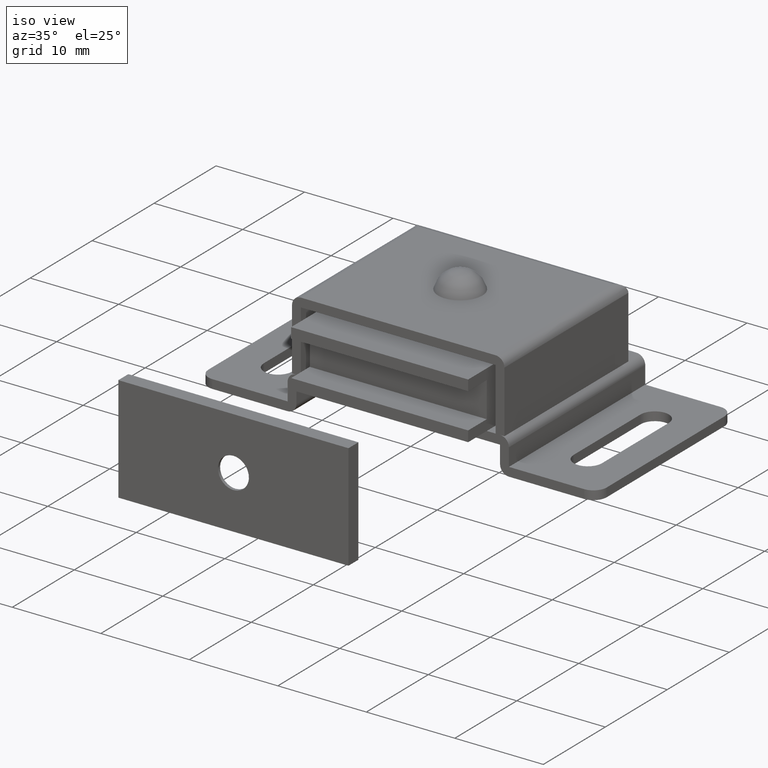
[diagram: clean part render]
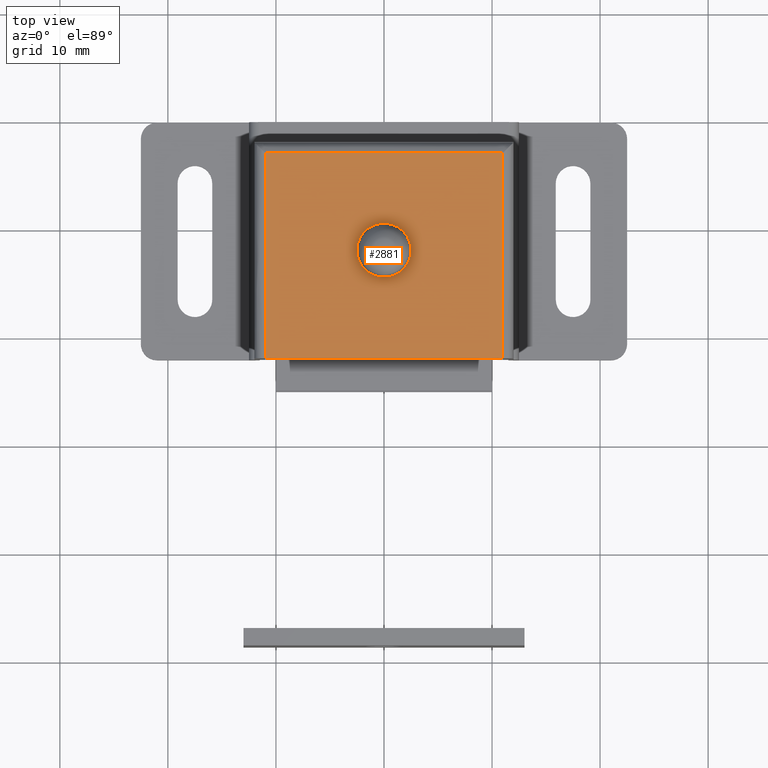
[diagram: tour spotlight — one face highlighted and labeled with its STEP entity id]
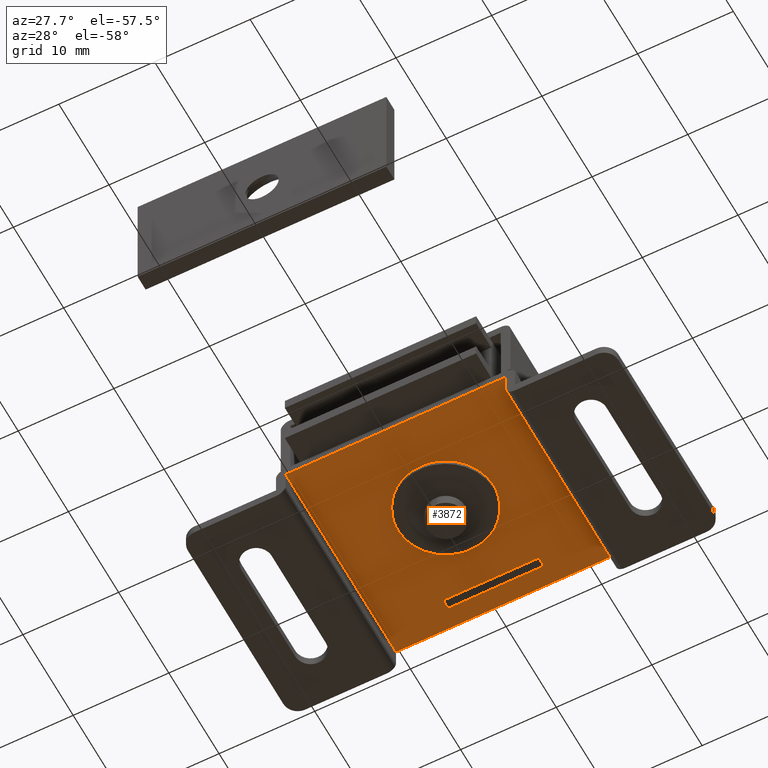
[diagram: tour spotlight — one face highlighted and labeled with its STEP entity id]
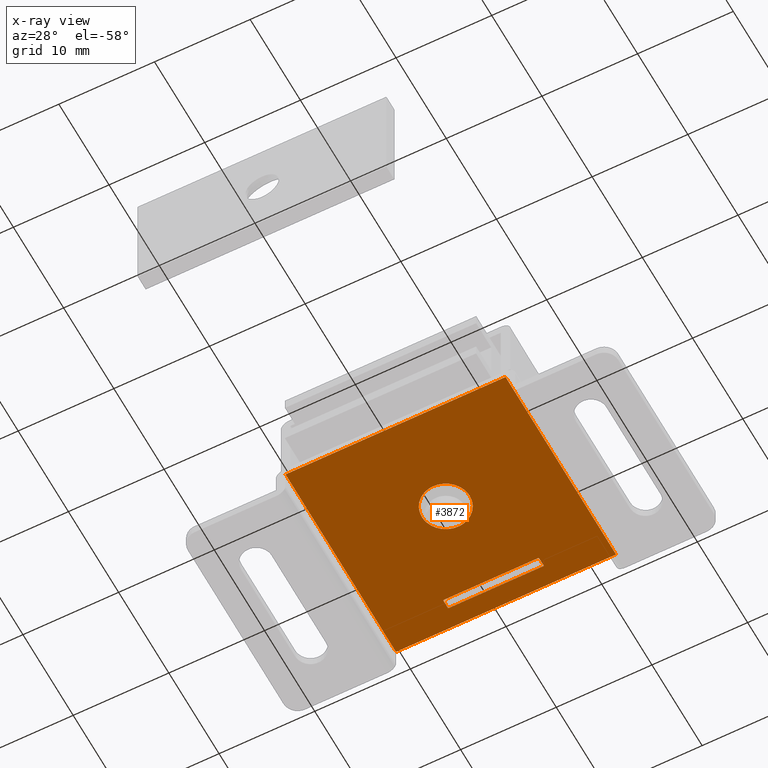
[diagram: x-ray of the same camera — body ghosted, this tour face saturated]
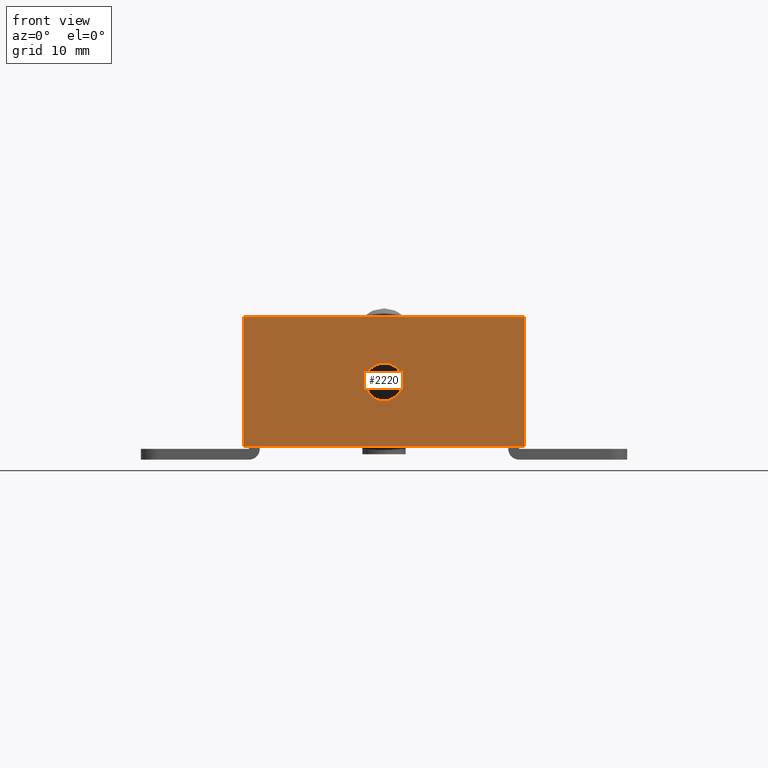
[diagram: tour spotlight — one face highlighted and labeled with its STEP entity id]
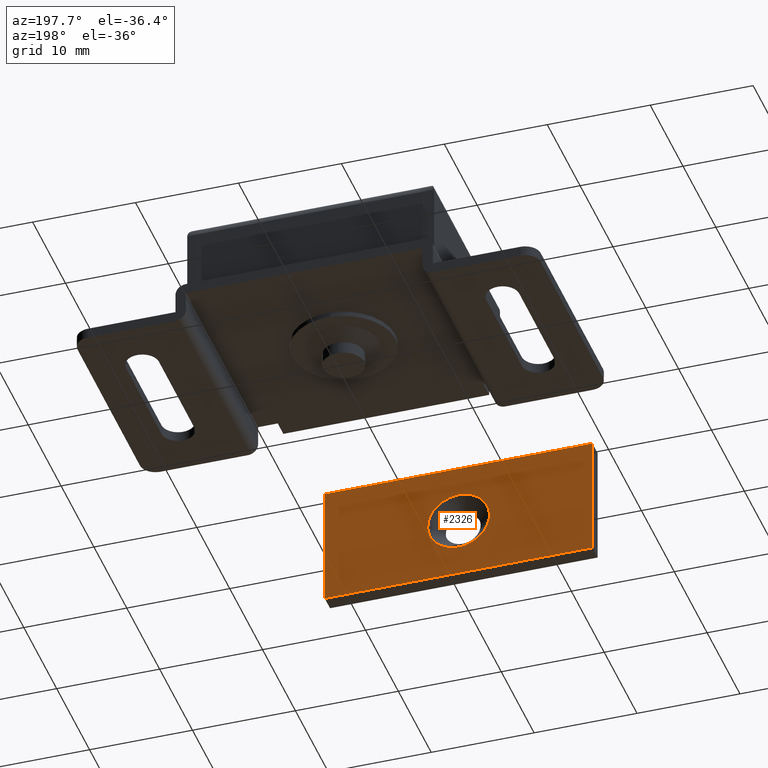
[diagram: tour spotlight — one face highlighted and labeled with its STEP entity id]
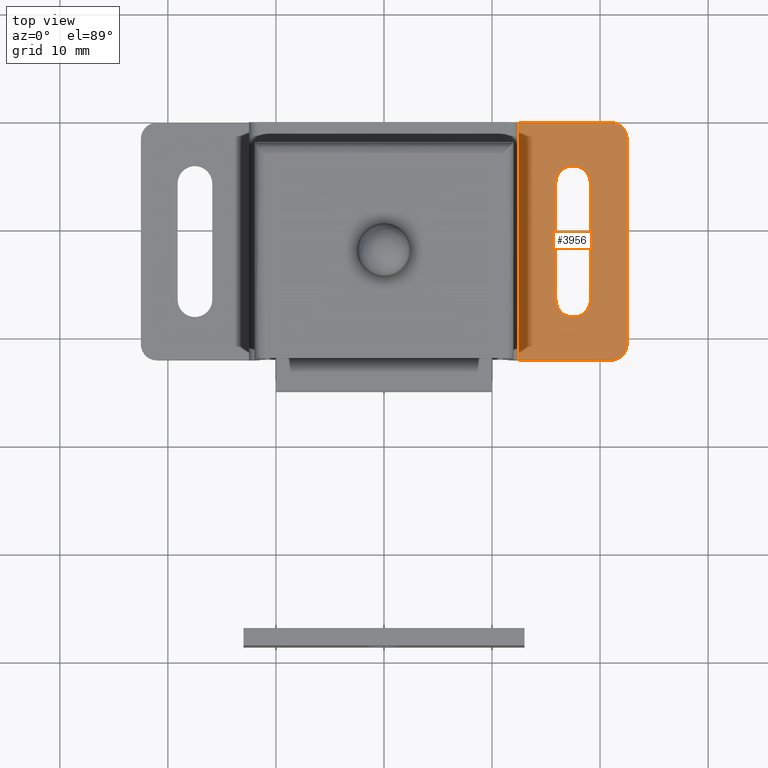
[diagram: tour spotlight — one face highlighted and labeled with its STEP entity id]
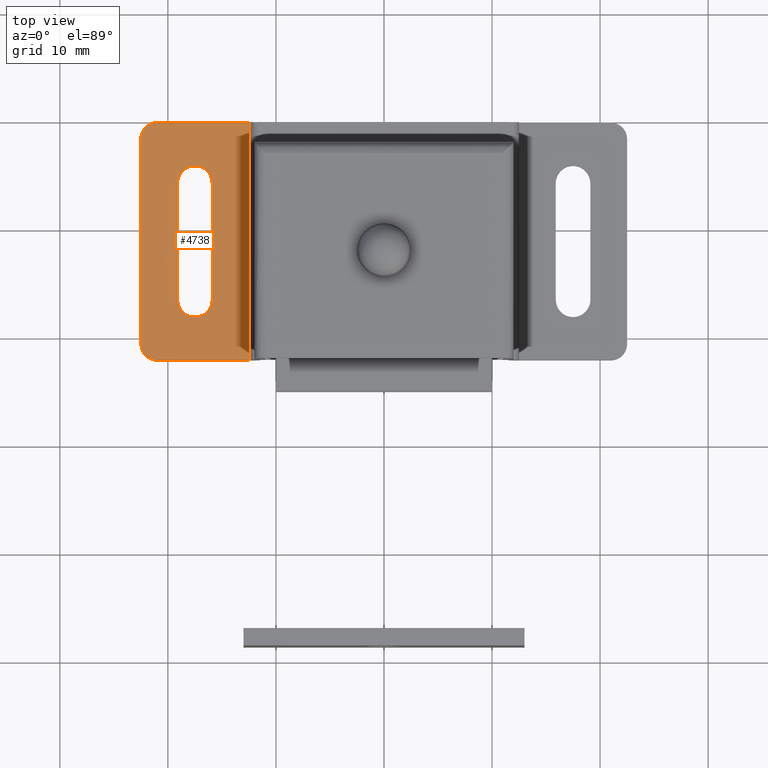
[diagram: tour spotlight — one face highlighted and labeled with its STEP entity id]
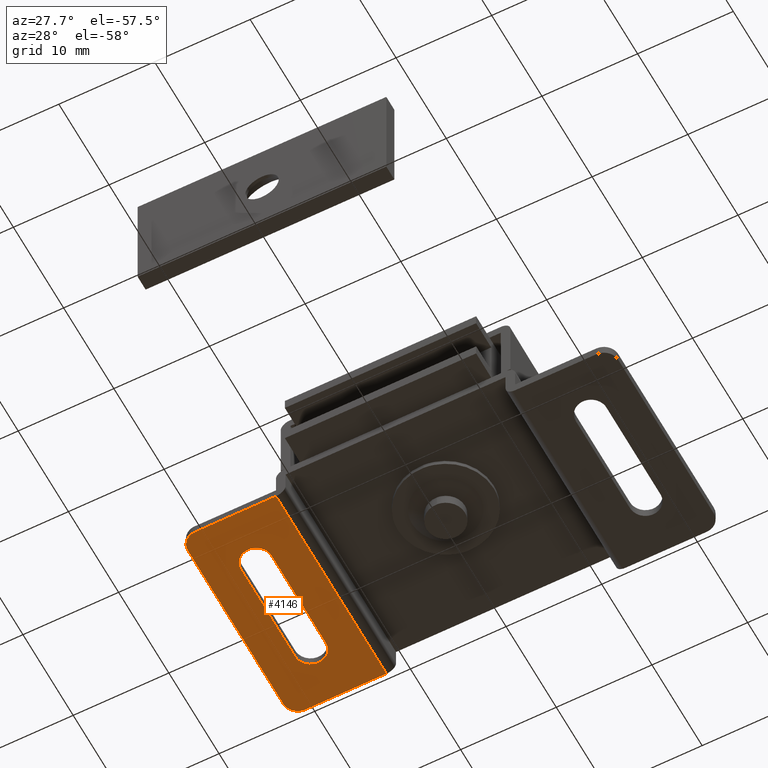
[diagram: tour spotlight — one face highlighted and labeled with its STEP entity id]
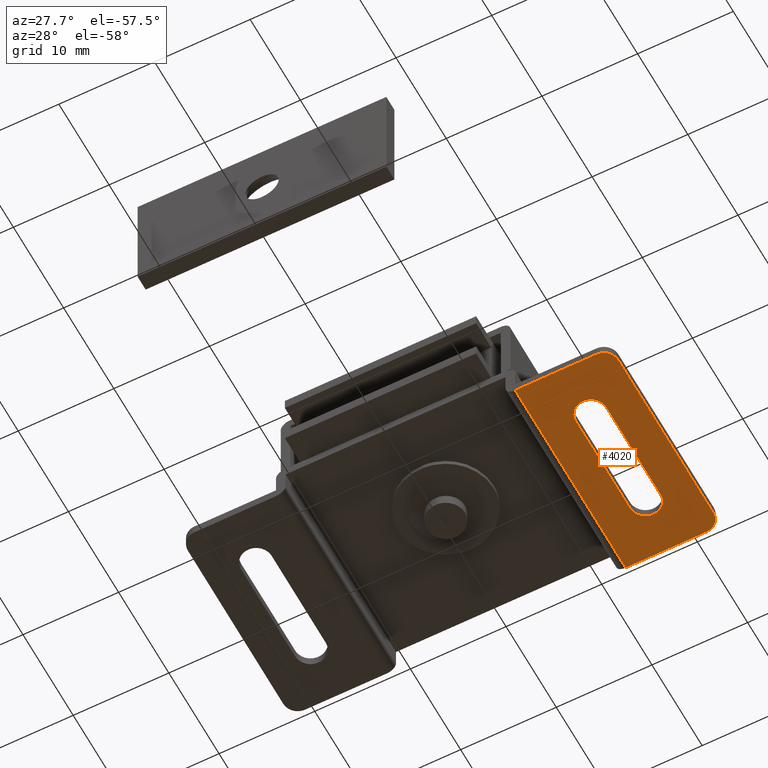
[diagram: tour spotlight — one face highlighted and labeled with its STEP entity id]
A machine part: a face-by-face anatomy tour. The part has 113 B-rep faces; the first image is the clean iso view, then the 8 largest visible faces are spotlighted one at a time (largest first), each with its STEP entity span.

Face 1 — top view, entity #2881. In plain terms, the highlighted face is a freeform B-spline surface patch.
Definition (entity closure, byte-faithful):
#2364=CARTESIAN_POINT('',(0.117688643632601,-13.495380000596500,12.0));
#2365=VERTEX_POINT('',#2364);
#2371=CARTESIAN_POINT('',(1.500000000000000,-12.000004000000020,12.0));
#2372=VERTEX_POINT('',#2371);
#2373=CARTESIAN_POINT('',(1.500000000000000,-12.000004000000020,12.0));
#2374=CARTESIAN_POINT('',(1.500000000000001,-13.386589737449350,12.0));
#2375=CARTESIAN_POINT('',(0.117688643632601,-13.495380000596503,12.000000000000004));
#2383=(BOUNDED_CURVE()B_SPLINE_CURVE(2,(#2373,#2374,#2375),.UNSPECIFIED.,.F.,.U.)B_SPLINE_CURVE_WITH_KNOTS((3,3),(0.0,0.236331300628086),.UNSPECIFIED.)CURVE()GEOMETRIC_REPRESENTATION_ITEM()RATIONAL_B_SPLINE_CURVE((1.0,0.723120658610681,0.969723356162046))REPRESENTATION_ITEM(''));
#2384=EDGE_CURVE('',#2372,#2365,#2383,.T.);
#2386=CARTESIAN_POINT('',(-0.117688643632601,-10.504627999403541,12.0));
#2387=VERTEX_POINT('',#2386);
#2388=CARTESIAN_POINT('',(-0.117688643632601,-10.504627999403546,12.000000000000004));
#2389=CARTESIAN_POINT('',(-0.058935160532016,-10.500004000000022,12.0));
#2390=CARTESIAN_POINT('',(0.0,-10.500004000000020,12.0));
#2391=CARTESIAN_POINT('',(1.500000000000000,-10.500004000000022,12.0));
#2392=CARTESIAN_POINT('',(1.500000000000000,-12.000004000000020,12.0));
#2400=(BOUNDED_CURVE()B_SPLINE_CURVE(2,(#2388,#2389,#2390,#2391,#2392),.UNSPECIFIED.,.F.,.U.)B_SPLINE_CURVE_WITH_KNOTS((3,2,3),(0.736331300628086,0.750000000000000,1.0),.UNSPECIFIED.)CURVE()GEOMETRIC_REPRESENTATION_ITEM()RATIONAL_B_SPLINE_CURVE((0.969723356162046,0.983986122575867,1.0,0.707106781186548,1.0))REPRESENTATION_ITEM(''));
#2401=EDGE_CURVE('',#2387,#2372,#2400,.T.);
#2477=CARTESIAN_POINT('',(-1.500000000000000,-12.000004000000020,12.0));
#2478=VERTEX_POINT('',#2477);
#2479=CARTESIAN_POINT('',(-1.500000000000000,-12.000004000000020,12.0));
#2480=CARTESIAN_POINT('',(-1.500000000000001,-10.613418262550693,12.0));
#2481=CARTESIAN_POINT('',(-0.117688643632601,-10.504627999403546,12.000000000000004));
#2489=(BOUNDED_CURVE()B_SPLINE_CURVE(2,(#2479,#2480,#2481),.UNSPECIFIED.,.F.,.U.)B_SPLINE_CURVE_WITH_KNOTS((3,3),(0.500000000000000,0.736331300628086),.UNSPECIFIED.)CURVE()GEOMETRIC_REPRESENTATION_ITEM()RATIONAL_B_SPLINE_CURVE((1.0,0.723120658610681,0.969723356162046))REPRESENTATION_ITEM(''));
#2490=EDGE_CURVE('',#2478,#2387,#2489,.T.);
#2492=CARTESIAN_POINT('',(0.117688643632601,-13.495380000596503,12.000000000000004));
#2493=CARTESIAN_POINT('',(0.058935160532016,-13.500004000000020,12.0));
#2494=CARTESIAN_POINT('',(0.0,-13.500004000000020,12.0));
#2495=CARTESIAN_POINT('',(-1.500000000000000,-13.500004000000020,12.0));
#2496=CARTESIAN_POINT('',(-1.500000000000000,-12.000004000000020,12.0));
#2504=(BOUNDED_CURVE()B_SPLINE_CURVE(2,(#2492,#2493,#2494,#2495,#2496),.UNSPECIFIED.,.F.,.U.)B_SPLINE_CURVE_WITH_KNOTS((3,2,3),(0.236331300628086,0.250000000000000,0.500000000000000),.UNSPECIFIED.)CURVE()GEOMETRIC_REPRESENTATION_ITEM()RATIONAL_B_SPLINE_CURVE((0.969723356162046,0.983986122575867,1.0,0.707106781186548,1.0))REPRESENTATION_ITEM(''));
#2505=EDGE_CURVE('',#2365,#2478,#2504,.T.);
#2525=CARTESIAN_POINT('',(-11.0,-22.0,12.0));
#2526=VERTEX_POINT('',#2525);
#2542=CARTESIAN_POINT('',(-11.0,-3.0,12.0));
#2543=VERTEX_POINT('',#2542);
#2544=CARTESIAN_POINT('',(-11.0,-3.0,12.0));
#2545=CARTESIAN_POINT('',(-11.0,-22.0,12.0));
#2546=QUASI_UNIFORM_CURVE('',1,(#2544,#2545),.UNSPECIFIED.,.F.,.U.);
#2547=EDGE_CURVE('',#2543,#2526,#2546,.T.);
#2714=CARTESIAN_POINT('',(10.999996999999979,-22.0,12.0));
#2715=VERTEX_POINT('',#2714);
#2729=CARTESIAN_POINT('',(10.999996999999979,-22.0,12.0));
#2730=CARTESIAN_POINT('',(-11.0,-22.0,12.0));
#2731=QUASI_UNIFORM_CURVE('',1,(#2729,#2730),.UNSPECIFIED.,.F.,.U.);
#2732=EDGE_CURVE('',#2715,#2526,#2731,.T.);
#2854=CARTESIAN_POINT('',(-12.098899807509740,-2.050950036825686,12.0));
#2855=CARTESIAN_POINT('',(-12.098899807509740,-22.949050472794021,12.0));
#2856=CARTESIAN_POINT('',(12.098897397595620,-2.050950036825686,12.0));
#2857=CARTESIAN_POINT('',(12.098897397595620,-22.949050472794021,12.0));
#2858=B_SPLINE_SURFACE_WITH_KNOTS('',1,1,((#2854,#2856),(#2855,#2857)),.UNSPECIFIED.,.F.,.F.,.U.,(2,2),(2,2),(0.0,20.898100435968342),(0.0,24.197797205105360),.UNSPECIFIED.);
#2859=ORIENTED_EDGE('',*,*,#2732,.F.);
#2860=CARTESIAN_POINT('',(10.999996999999979,-3.0,12.0));
#2861=VERTEX_POINT('',#2860);
#2862=CARTESIAN_POINT('',(10.999996999999979,-22.0,12.0));
#2863=CARTESIAN_POINT('',(10.999996999999979,-3.0,12.0));
#2864=QUASI_UNIFORM_CURVE('',1,(#2862,#2863),.UNSPECIFIED.,.F.,.U.);
#2865=EDGE_CURVE('',#2715,#2861,#2864,.T.);
#2866=ORIENTED_EDGE('',*,*,#2865,.T.);
#2867=CARTESIAN_POINT('',(10.999996999999979,-3.0,12.0));
#2868=CARTESIAN_POINT('',(-11.0,-3.0,12.0));
#2869=QUASI_UNIFORM_CURVE('',1,(#2867,#2868),.UNSPECIFIED.,.F.,.U.);
#2870=EDGE_CURVE('',#2861,#2543,#2869,.T.);
#2871=ORIENTED_EDGE('',*,*,#2870,.T.);
#2872=ORIENTED_EDGE('',*,*,#2547,.T.);
#2873=EDGE_LOOP('',(#2859,#2866,#2871,#2872));
#2874=FACE_OUTER_BOUND('',#2873,.T.);
#2875=ORIENTED_EDGE('',*,*,#2490,.T.);
#2876=ORIENTED_EDGE('',*,*,#2401,.T.);
#2877=ORIENTED_EDGE('',*,*,#2384,.T.);
#2878=ORIENTED_EDGE('',*,*,#2505,.T.);
#2879=EDGE_LOOP('',(#2875,#2876,#2877,#2878));
#2880=FACE_BOUND('',#2879,.T.);
#2881=ADVANCED_FACE('',(#2874,#2880),#2858,.T.);

Face 2 — auxiliary view, entity #3872. An x-ray twin of the same camera follows (body ghosted, this face saturated) — the face is partly hidden behind the body. In plain terms, the highlighted face is a freeform B-spline surface patch.
Definition (entity closure, byte-faithful):
#3234=CARTESIAN_POINT('',(0.152621348855625,-9.504663003946462,3.0));
#3235=VERTEX_POINT('',#3234);
#3241=CARTESIAN_POINT('',(2.500000000000001,-12.0,3.0));
#3242=VERTEX_POINT('',#3241);
#3243=CARTESIAN_POINT('',(2.500000000000001,-12.0,3.0));
#3244=CARTESIAN_POINT('',(2.500000000000001,-9.648234832753211,3.000000000000001));
#3245=CARTESIAN_POINT('',(0.152621348855624,-9.504663003946465,3.0));
#3253=(BOUNDED_CURVE()B_SPLINE_CURVE(2,(#3243,#3244,#3245),.UNSPECIFIED.,.F.,.U.)B_SPLINE_CURVE_WITH_KNOTS((3,3),(0.500000000000000,0.739332962240690),.UNSPECIFIED.)CURVE()GEOMETRIC_REPRESENTATION_ITEM()RATIONAL_B_SPLINE_CURVE((1.0,0.719603993284663,0.976072041670463))REPRESENTATION_ITEM(''));
#3254=EDGE_CURVE('',#3242,#3235,#3253,.T.);
#3256=CARTESIAN_POINT('',(-0.152621348855622,-14.495336996053540,3.0));
#3257=VERTEX_POINT('',#3256);
#3258=CARTESIAN_POINT('',(-0.152621348855622,-14.495336996053537,2.999999999999999));
#3259=CARTESIAN_POINT('',(-0.076381908255737,-14.500000000000004,3.000000000000000));
#3260=CARTESIAN_POINT('',(1.469528E-015,-14.500000000000000,3.0));
#3261=CARTESIAN_POINT('',(2.500000000000001,-14.500000000000000,3.0));
#3262=CARTESIAN_POINT('',(2.500000000000001,-12.0,3.0));
#3270=(BOUNDED_CURVE()B_SPLINE_CURVE(2,(#3258,#3259,#3260,#3261,#3262),.UNSPECIFIED.,.F.,.U.)B_SPLINE_CURVE_WITH_KNOTS((3,2,3),(0.239332962240690,0.250000000000000,0.500000000000000),.UNSPECIFIED.)CURVE()GEOMETRIC_REPRESENTATION_ITEM()RATIONAL_B_SPLINE_CURVE((0.976072041670463,0.987502787901885,1.0,0.707106781186548,1.0))REPRESENTATION_ITEM(''));
#3271=EDGE_CURVE('',#3257,#3242,#3270,.T.);
#3315=CARTESIAN_POINT('',(-2.499999999999999,-12.0,3.0));
#3316=VERTEX_POINT('',#3315);
#3317=CARTESIAN_POINT('',(-2.499999999999999,-12.0,3.0));
#3318=CARTESIAN_POINT('',(-2.499999999999998,-14.351765167246793,3.000000000000000));
#3319=CARTESIAN_POINT('',(-0.152621348855622,-14.495336996053537,2.999999999999999));
#3327=(BOUNDED_CURVE()B_SPLINE_CURVE(2,(#3317,#3318,#3319),.UNSPECIFIED.,.F.,.U.)B_SPLINE_CURVE_WITH_KNOTS((3,3),(0.0,0.239332962240690),.UNSPECIFIED.)CURVE()GEOMETRIC_REPRESENTATION_ITEM()RATIONAL_B_SPLINE_CURVE((1.0,0.719603993284663,0.976072041670463))REPRESENTATION_ITEM(''));
#3328=EDGE_CURVE('',#3316,#3257,#3327,.T.);
#3330=CARTESIAN_POINT('',(0.152621348855624,-9.504663003946465,3.0));
#3331=CARTESIAN_POINT('',(0.076381908255740,-9.500000000000000,3.0));
#3332=CARTESIAN_POINT('',(1.469528E-015,-9.500000000000000,3.0));
#3333=CARTESIAN_POINT('',(-2.499999999999999,-9.500000000000000,3.0));
#3334=CARTESIAN_POINT('',(-2.499999999999999,-12.0,3.0));
#3342=(BOUNDED_CURVE()B_SPLINE_CURVE(2,(#3330,#3331,#3332,#3333,#3334),.UNSPECIFIED.,.F.,.U.)B_SPLINE_CURVE_WITH_KNOTS((3,2,3),(0.739332962240690,0.750000000000000,1.0),.UNSPECIFIED.)CURVE()GEOMETRIC_REPRESENTATION_ITEM()RATIONAL_B_SPLINE_CURVE((0.976072041670463,0.987502787901885,1.0,0.707106781186548,1.0))REPRESENTATION_ITEM(''));
#3343=EDGE_CURVE('',#3235,#3316,#3342,.T.);
#3378=CARTESIAN_POINT('',(5.0,-2.0,3.0));
#3379=VERTEX_POINT('',#3378);
#3385=CARTESIAN_POINT('',(5.0,-3.0,3.0));
#3386=VERTEX_POINT('',#3385);
#3387=CARTESIAN_POINT('',(5.0,-3.0,3.0));
#3388=CARTESIAN_POINT('',(5.0,-2.0,3.0));
#3389=QUASI_UNIFORM_CURVE('',1,(#3387,#3388),.UNSPECIFIED.,.F.,.U.);
#3390=EDGE_CURVE('',#3386,#3379,#3389,.T.);
#3413=CARTESIAN_POINT('',(-5.0,-3.0,3.0));
#3414=VERTEX_POINT('',#3413);
#3415=CARTESIAN_POINT('',(-5.0,-3.0,3.0));
#3416=CARTESIAN_POINT('',(5.0,-3.0,3.0));
#3417=QUASI_UNIFORM_CURVE('',1,(#3415,#3416),.UNSPECIFIED.,.F.,.U.);
#3418=EDGE_CURVE('',#3414,#3386,#3417,.T.);
#3441=CARTESIAN_POINT('',(-5.0,-2.0,3.0));
#3442=VERTEX_POINT('',#3441);
#3443=CARTESIAN_POINT('',(-5.0,-2.0,3.0));
#3444=CARTESIAN_POINT('',(-5.0,-3.0,3.0));
#3445=QUASI_UNIFORM_CURVE('',1,(#3443,#3444),.UNSPECIFIED.,.F.,.U.);
#3446=EDGE_CURVE('',#3442,#3414,#3445,.T.);
#3467=CARTESIAN_POINT('',(5.0,-2.0,3.0));
#3468=CARTESIAN_POINT('',(-5.0,-2.0,3.0));
#3469=QUASI_UNIFORM_CURVE('',1,(#3467,#3468),.UNSPECIFIED.,.F.,.U.);
#3470=EDGE_CURVE('',#3379,#3442,#3469,.T.);
#3802=CARTESIAN_POINT('',(11.499997000000000,0.0,3.0));
#3803=VERTEX_POINT('',#3802);
#3818=CARTESIAN_POINT('',(11.499997000000000,-22.0,3.0));
#3819=VERTEX_POINT('',#3818);
#3825=CARTESIAN_POINT('',(11.499997000000000,0.0,3.0));
#3826=CARTESIAN_POINT('',(11.499997000000000,-22.0,3.0));
#3827=QUASI_UNIFORM_CURVE('',1,(#3825,#3826),.UNSPECIFIED.,.F.,.U.);
#3828=EDGE_CURVE('',#3803,#3819,#3827,.T.);
#3833=CARTESIAN_POINT('',(12.648846805571550,-23.098899957359730,3.0));
#3834=CARTESIAN_POINT('',(-12.648850422479541,-23.098899957359730,3.0));
#3835=CARTESIAN_POINT('',(12.648846805571541,1.098900547445715,3.0));
#3836=CARTESIAN_POINT('',(-12.648850422479541,1.098900547445715,3.0));
#3837=B_SPLINE_SURFACE_WITH_KNOTS('',1,1,((#3833,#3835),(#3834,#3836)),.UNSPECIFIED.,.F.,.F.,.U.,(2,2),(2,2),(0.0,25.297697228051089),(0.0,24.197800504805450),.UNSPECIFIED.);
#3838=CARTESIAN_POINT('',(-11.500000000000000,-22.0,3.0));
#3839=VERTEX_POINT('',#3838);
#3840=CARTESIAN_POINT('',(-11.500000000000000,-22.0,3.0));
#3841=CARTESIAN_POINT('',(11.499997000000000,-22.0,3.0));
#3842=QUASI_UNIFORM_CURVE('',1,(#3840,#3841),.UNSPECIFIED.,.F.,.U.);
#3843=EDGE_CURVE('',#3839,#3819,#3842,.T.);
#3844=ORIENTED_EDGE('',*,*,#3843,.F.);
#3845=CARTESIAN_POINT('',(-11.500000000000000,0.0,3.0));
#3846=VERTEX_POINT('',#3845);
#3847=CARTESIAN_POINT('',(-11.500000000000000,0.0,3.0));
#3848=CARTESIAN_POINT('',(-11.500000000000000,-22.0,3.0));
#3849=QUASI_UNIFORM_CURVE('',1,(#3847,#3848),.UNSPECIFIED.,.F.,.U.);
#3850=EDGE_CURVE('',#3846,#3839,#3849,.T.);
#3851=ORIENTED_EDGE('',*,*,#3850,.F.);
#3852=CARTESIAN_POINT('',(-11.500000000000000,0.0,3.0));
#3853=CARTESIAN_POINT('',(11.499997000000000,0.0,3.0));
#3854=QUASI_UNIFORM_CURVE('',1,(#3852,#3853),.UNSPECIFIED.,.F.,.U.);
#3855=EDGE_CURVE('',#3846,#3803,#3854,.T.);
#3856=ORIENTED_EDGE('',*,*,#3855,.T.);
#3857=ORIENTED_EDGE('',*,*,#3828,.T.);
#3858=EDGE_LOOP('',(#3844,#3851,#3856,#3857));
#3859=FACE_OUTER_BOUND('',#3858,.T.);
#3860=ORIENTED_EDGE('',*,*,#3470,.T.);
#3861=ORIENTED_EDGE('',*,*,#3446,.T.);
#3862=ORIENTED_EDGE('',*,*,#3418,.T.);
#3863=ORIENTED_EDGE('',*,*,#3390,.T.);
#3864=EDGE_LOOP('',(#3860,#3861,#3862,#3863));
#3865=FACE_BOUND('',#3864,.T.);
#3866=ORIENTED_EDGE('',*,*,#3254,.T.);
#3867=ORIENTED_EDGE('',*,*,#3343,.T.);
#3868=ORIENTED_EDGE('',*,*,#3328,.T.);
#3869=ORIENTED_EDGE('',*,*,#3271,.T.);
#3870=EDGE_LOOP('',(#3866,#3867,#3868,#3869));
#3871=FACE_BOUND('',#3870,.T.);
#3872=ADVANCED_FACE('',(#3859,#3865,#3871),#3837,.T.);

Face 3 — front view, entity #2220. In plain terms, the highlighted face is a freeform B-spline surface patch.
Definition (entity closure, byte-faithful):
#1885=CARTESIAN_POINT('',(1.746735897228572,-48.600005999999802,7.093162055655493));
#1886=VERTEX_POINT('',#1885);
#1887=CARTESIAN_POINT('',(0.0,-48.600005999999802,8.949997000000000));
#1888=VERTEX_POINT('',#1887);
#1889=CARTESIAN_POINT('',(1.746735897228573,-48.600005999999794,7.093162055655492));
#1890=CARTESIAN_POINT('',(1.750000000000000,-48.600005999999802,7.146529664147994));
#1891=CARTESIAN_POINT('',(1.750000000000000,-48.600005999999802,7.199997000000000));
#1892=CARTESIAN_POINT('',(1.750000000000000,-48.600005999999816,8.949997000000000));
#1893=CARTESIAN_POINT('',(0.0,-48.600005999999802,8.949997000000000));
#1901=(BOUNDED_CURVE()B_SPLINE_CURVE(2,(#1889,#1890,#1891,#1892,#1893),.UNSPECIFIED.,.F.,.U.)B_SPLINE_CURVE_WITH_KNOTS((3,2,3),(0.239332962226311,0.250000000000000,0.500000000000000),.UNSPECIFIED.)CURVE()GEOMETRIC_REPRESENTATION_ITEM()RATIONAL_B_SPLINE_CURVE((0.976072041639644,0.987502787885038,1.0,0.707106781186547,1.0))REPRESENTATION_ITEM(''));
#1902=EDGE_CURVE('',#1886,#1888,#1901,.T.);
#1904=CARTESIAN_POINT('',(-1.746735897228572,-48.600005999999802,7.306831944344507));
#1905=VERTEX_POINT('',#1904);
#1906=CARTESIAN_POINT('',(0.0,-48.600005999999802,8.949997000000000));
#1907=CARTESIAN_POINT('',(-1.646235616935299,-48.600005999999816,8.949997000000000));
#1908=CARTESIAN_POINT('',(-1.746735897228572,-48.600005999999802,7.306831944344507));
#1916=(BOUNDED_CURVE()B_SPLINE_CURVE(2,(#1906,#1907,#1908),.UNSPECIFIED.,.F.,.U.)B_SPLINE_CURVE_WITH_KNOTS((3,3),(0.500000000000000,0.739332962226311),.UNSPECIFIED.)CURVE()GEOMETRIC_REPRESENTATION_ITEM()RATIONAL_B_SPLINE_CURVE((1.0,0.719603993301510,0.976072041639644))REPRESENTATION_ITEM(''));
#1917=EDGE_CURVE('',#1888,#1905,#1916,.T.);
#1984=CARTESIAN_POINT('',(0.0,-48.600005999999802,5.449997000000000));
#1985=VERTEX_POINT('',#1984);
#1986=CARTESIAN_POINT('',(0.0,-48.600005999999802,5.449997000000000));
#1987=CARTESIAN_POINT('',(1.646235616935299,-48.600005999999794,5.449996999999999));
#1988=CARTESIAN_POINT('',(1.746735897228573,-48.600005999999794,7.093162055655495));
#1996=(BOUNDED_CURVE()B_SPLINE_CURVE(2,(#1986,#1987,#1988),.UNSPECIFIED.,.F.,.U.)B_SPLINE_CURVE_WITH_KNOTS((3,3),(0.0,0.239332962226311),.UNSPECIFIED.)CURVE()GEOMETRIC_REPRESENTATION_ITEM()RATIONAL_B_SPLINE_CURVE((1.0,0.719603993301510,0.976072041639644))REPRESENTATION_ITEM(''));
#1997=EDGE_CURVE('',#1985,#1886,#1996,.T.);
#2031=CARTESIAN_POINT('',(-1.746735897228572,-48.600005999999802,7.306831944344507));
#2032=CARTESIAN_POINT('',(-1.750000000000000,-48.600005999999802,7.253464335852006));
#2033=CARTESIAN_POINT('',(-1.750000000000000,-48.600005999999802,7.199997000000000));
#2034=CARTESIAN_POINT('',(-1.750000000000000,-48.600005999999816,5.449997000000000));
#2035=CARTESIAN_POINT('',(0.0,-48.600005999999802,5.449997000000000));
#2043=(BOUNDED_CURVE()B_SPLINE_CURVE(2,(#2031,#2032,#2033,#2034,#2035),.UNSPECIFIED.,.F.,.U.)B_SPLINE_CURVE_WITH_KNOTS((3,2,3),(0.739332962226311,0.750000000000000,1.0),.UNSPECIFIED.)CURVE()GEOMETRIC_REPRESENTATION_ITEM()RATIONAL_B_SPLINE_CURVE((0.976072041639644,0.987502787885038,1.0,0.707106781186547,1.0))REPRESENTATION_ITEM(''));
#2044=EDGE_CURVE('',#1905,#1985,#2043,.T.);
#2179=CARTESIAN_POINT('',(-14.298699949606959,-48.600005999999802,13.799396976741630));
#2180=CARTESIAN_POINT('',(14.298700646981301,-48.600005999999802,13.799396976741630));
#2181=CARTESIAN_POINT('',(-14.298699949606959,-48.600005999999802,0.600596701392977));
#2182=CARTESIAN_POINT('',(14.298700646981301,-48.600005999999802,0.600596701392977));
#2183=B_SPLINE_SURFACE_WITH_KNOTS('',1,1,((#2179,#2181),(#2180,#2182)),.UNSPECIFIED.,.F.,.F.,.U.,(2,2),(2,2),(0.0,28.597400596588258),(0.0,13.198800275348651),.UNSPECIFIED.);
#2184=CARTESIAN_POINT('',(-13.0,-48.600005999999802,13.199996999999939));
#2185=VERTEX_POINT('',#2184);
#2186=CARTESIAN_POINT('',(13.0,-48.600005999999802,13.199996999999939));
#2187=VERTEX_POINT('',#2186);
#2188=CARTESIAN_POINT('',(-13.0,-48.600005999999802,13.199996999999939));
#2189=CARTESIAN_POINT('',(13.0,-48.600005999999802,13.199996999999939));
#2190=QUASI_UNIFORM_CURVE('',1,(#2188,#2189),.UNSPECIFIED.,.F.,.U.);
#2191=EDGE_CURVE('',#2185,#2187,#2190,.T.);
#2192=ORIENTED_EDGE('',*,*,#2191,.F.);
#2193=CARTESIAN_POINT('',(-13.0,-48.600005999999802,1.199996999999740));
#2194=VERTEX_POINT('',#2193);
#2195=CARTESIAN_POINT('',(-13.0,-48.600005999999802,1.199996999999740));
#2196=CARTESIAN_POINT('',(-13.0,-48.600005999999802,13.199996999999939));
#2197=QUASI_UNIFORM_CURVE('',1,(#2195,#2196),.UNSPECIFIED.,.F.,.U.);
#2198=EDGE_CURVE('',#2194,#2185,#2197,.T.);
#2199=ORIENTED_EDGE('',*,*,#2198,.F.);
#2200=CARTESIAN_POINT('',(13.0,-48.600005999999802,1.199996999999740));
#2201=VERTEX_POINT('',#2200);
#2202=CARTESIAN_POINT('',(13.0,-48.600005999999802,1.199996999999740));
#2203=CARTESIAN_POINT('',(-13.0,-48.600005999999802,1.199996999999740));
#2204=QUASI_UNIFORM_CURVE('',1,(#2202,#2203),.UNSPECIFIED.,.F.,.U.);
#2205=EDGE_CURVE('',#2201,#2194,#2204,.T.);
#2206=ORIENTED_EDGE('',*,*,#2205,.F.);
#2207=CARTESIAN_POINT('',(13.0,-48.600005999999802,13.199996999999939));
#2208=CARTESIAN_POINT('',(13.0,-48.600005999999802,1.199996999999740));
#2209=QUASI_UNIFORM_CURVE('',1,(#2207,#2208),.UNSPECIFIED.,.F.,.U.);
#2210=EDGE_CURVE('',#2187,#2201,#2209,.T.);
#2211=ORIENTED_EDGE('',*,*,#2210,.F.);
#2212=EDGE_LOOP('',(#2192,#2199,#2206,#2211));
#2213=FACE_OUTER_BOUND('',#2212,.T.);
#2214=ORIENTED_EDGE('',*,*,#1917,.F.);
#2215=ORIENTED_EDGE('',*,*,#1902,.F.);
#2216=ORIENTED_EDGE('',*,*,#1997,.F.);
#2217=ORIENTED_EDGE('',*,*,#2044,.F.);
#2218=EDGE_LOOP('',(#2214,#2215,#2216,#2217));
#2219=FACE_BOUND('',#2218,.T.);
#2220=ADVANCED_FACE('',(#2213,#2219),#2183,.F.);

Face 4 — auxiliary view, entity #2326. In plain terms, the highlighted face is a freeform B-spline surface patch.
Definition (entity closure, byte-faithful):
#2072=CARTESIAN_POINT('',(2.990752001213202,-46.999999999965183,6.964619712548256));
#2073=VERTEX_POINT('',#2072);
#2079=CARTESIAN_POINT('',(0.0,-47.0,4.199997000000000));
#2080=VERTEX_POINT('',#2079);
#2081=CARTESIAN_POINT('',(0.0,-47.0,4.199997000000000));
#2082=CARTESIAN_POINT('',(2.773171474745053,-46.999999999982599,4.199996999998636));
#2083=CARTESIAN_POINT('',(2.990752001213202,-46.999999999965183,6.964619712548256));
#2091=(BOUNDED_CURVE()B_SPLINE_CURVE(2,(#2081,#2082,#2083),.UNSPECIFIED.,.F.,.U.)B_SPLINE_CURVE_WITH_KNOTS((3,3),(0.0,0.236331300617550),.UNSPECIFIED.)CURVE()GEOMETRIC_REPRESENTATION_ITEM()RATIONAL_B_SPLINE_CURVE((1.0,0.723120658623024,0.969723356140059))REPRESENTATION_ITEM(''));
#2092=EDGE_CURVE('',#2080,#2073,#2091,.T.);
#2094=CARTESIAN_POINT('',(-2.990752001213200,-46.999999999965183,7.435374287451745));
#2095=VERTEX_POINT('',#2094);
#2096=CARTESIAN_POINT('',(-2.990752001213200,-46.999999999965191,7.435374287451745));
#2097=CARTESIAN_POINT('',(-3.000000000034079,-46.999999999965816,7.317867321159047));
#2098=CARTESIAN_POINT('',(-3.000000000033397,-46.999999999966498,7.199997000002628));
#2099=CARTESIAN_POINT('',(-3.000000000016043,-46.999999999983913,4.199997000001261));
#2100=CARTESIAN_POINT('',(0.0,-47.0,4.199997000000000));
#2108=(BOUNDED_CURVE()B_SPLINE_CURVE(2,(#2096,#2097,#2098,#2099,#2100),.UNSPECIFIED.,.F.,.U.)B_SPLINE_CURVE_WITH_KNOTS((3,2,3),(0.736331300617550,0.750000000000000,1.0),.UNSPECIFIED.)CURVE()GEOMETRIC_REPRESENTATION_ITEM()RATIONAL_B_SPLINE_CURVE((0.969723356140059,0.983986122563523,1.0,0.707106781186548,1.0))REPRESENTATION_ITEM(''));
#2109=EDGE_CURVE('',#2095,#2080,#2108,.T.);
#2145=CARTESIAN_POINT('',(0.0,-47.0,10.199997000000000));
#2146=VERTEX_POINT('',#2145);
#2147=CARTESIAN_POINT('',(0.0,-47.0,10.199997000000000));
#2148=CARTESIAN_POINT('',(-2.773171474745050,-46.999999999982592,10.199997000001364));
#2149=CARTESIAN_POINT('',(-2.990752001213200,-46.999999999965191,7.435374287451745));
#2157=(BOUNDED_CURVE()B_SPLINE_CURVE(2,(#2147,#2148,#2149),.UNSPECIFIED.,.F.,.U.)B_SPLINE_CURVE_WITH_KNOTS((3,3),(0.500000000000000,0.736331300617550),.UNSPECIFIED.)CURVE()GEOMETRIC_REPRESENTATION_ITEM()RATIONAL_B_SPLINE_CURVE((1.0,0.723120658623024,0.969723356140059))REPRESENTATION_ITEM(''));
#2158=EDGE_CURVE('',#2146,#2095,#2157,.T.);
#2160=CARTESIAN_POINT('',(2.990752001213202,-46.999999999965183,6.964619712548256));
#2161=CARTESIAN_POINT('',(3.000000000034080,-46.999999999965809,7.082126678840954));
#2162=CARTESIAN_POINT('',(3.000000000033399,-46.999999999966498,7.199996999997372));
#2163=CARTESIAN_POINT('',(3.000000000016043,-46.999999999983913,10.199996999998737));
#2164=CARTESIAN_POINT('',(0.0,-47.0,10.199997000000000));
#2172=(BOUNDED_CURVE()B_SPLINE_CURVE(2,(#2160,#2161,#2162,#2163,#2164),.UNSPECIFIED.,.F.,.U.)B_SPLINE_CURVE_WITH_KNOTS((3,2,3),(0.236331300617550,0.250000000000000,0.500000000000000),.UNSPECIFIED.)CURVE()GEOMETRIC_REPRESENTATION_ITEM()RATIONAL_B_SPLINE_CURVE((0.969723356140059,0.983986122563523,1.0,0.707106781186548,1.0))REPRESENTATION_ITEM(''));
#2173=EDGE_CURVE('',#2073,#2146,#2172,.T.);
#2227=CARTESIAN_POINT('',(-13.0,-47.0,13.199996999999939));
#2228=VERTEX_POINT('',#2227);
#2234=CARTESIAN_POINT('',(-13.0,-47.0,1.199996999999740));
#2235=VERTEX_POINT('',#2234);
#2236=CARTESIAN_POINT('',(-13.0,-47.0,1.199996999999740));
#2237=CARTESIAN_POINT('',(-13.0,-47.0,13.199996999999939));
#2238=QUASI_UNIFORM_CURVE('',1,(#2236,#2237),.UNSPECIFIED.,.F.,.U.);
#2239=EDGE_CURVE('',#2235,#2228,#2238,.T.);
#2256=CARTESIAN_POINT('',(13.0,-47.0,1.199996999999740));
#2257=VERTEX_POINT('',#2256);
#2258=CARTESIAN_POINT('',(13.0,-47.0,1.199996999999740));
#2259=CARTESIAN_POINT('',(-13.0,-47.0,1.199996999999740));
#2260=QUASI_UNIFORM_CURVE('',1,(#2258,#2259),.UNSPECIFIED.,.F.,.U.);
#2261=EDGE_CURVE('',#2257,#2235,#2260,.T.);
#2278=CARTESIAN_POINT('',(13.0,-47.0,13.199996999999939));
#2279=VERTEX_POINT('',#2278);
#2280=CARTESIAN_POINT('',(13.0,-47.0,13.199996999999939));
#2281=CARTESIAN_POINT('',(13.0,-47.0,1.199996999999740));
#2282=QUASI_UNIFORM_CURVE('',1,(#2280,#2281),.UNSPECIFIED.,.F.,.U.);
#2283=EDGE_CURVE('',#2279,#2257,#2282,.T.);
#2300=CARTESIAN_POINT('',(-13.0,-47.0,13.199996999999939));
#2301=CARTESIAN_POINT('',(13.0,-47.0,13.199996999999939));
#2302=QUASI_UNIFORM_CURVE('',1,(#2300,#2301),.UNSPECIFIED.,.F.,.U.);
#2303=EDGE_CURVE('',#2228,#2279,#2302,.T.);
#2309=CARTESIAN_POINT('',(-14.298699949606959,-47.0,13.799396976741630));
#2310=CARTESIAN_POINT('',(14.298700646981301,-47.0,13.799396976741630));
#2311=CARTESIAN_POINT('',(-14.298699949606959,-47.0,0.600596701392977));
#2312=CARTESIAN_POINT('',(14.298700646981301,-47.0,0.600596701392977));
#2313=B_SPLINE_SURFACE_WITH_KNOTS('',1,1,((#2309,#2311),(#2310,#2312)),.UNSPECIFIED.,.F.,.F.,.U.,(2,2),(2,2),(0.0,28.597400596588258),(0.0,13.198800275348651),.UNSPECIFIED.);
#2314=ORIENTED_EDGE('',*,*,#2303,.T.);
#2315=ORIENTED_EDGE('',*,*,#2283,.T.);
#2316=ORIENTED_EDGE('',*,*,#2261,.T.);
#2317=ORIENTED_EDGE('',*,*,#2239,.T.);
#2318=EDGE_LOOP('',(#2314,#2315,#2316,#2317));
#2319=FACE_OUTER_BOUND('',#2318,.T.);
#2320=ORIENTED_EDGE('',*,*,#2158,.T.);
#2321=ORIENTED_EDGE('',*,*,#2109,.T.);
#2322=ORIENTED_EDGE('',*,*,#2092,.T.);
#2323=ORIENTED_EDGE('',*,*,#2173,.T.);
#2324=EDGE_LOOP('',(#2320,#2321,#2322,#2323));
#2325=FACE_BOUND('',#2324,.T.);
#2326=ADVANCED_FACE('',(#2319,#2325),#2313,.T.);

Face 5 — top view, entity #3956. In plain terms, the highlighted face is a freeform B-spline surface patch.
Definition (entity closure, byte-faithful):
#3490=CARTESIAN_POINT('',(19.100003000000001,-16.400008720747302,0.999999999999972));
#3491=VERTEX_POINT('',#3490);
#3497=CARTESIAN_POINT('',(19.100003000000001,-5.600005999999890,1.0));
#3498=VERTEX_POINT('',#3497);
#3499=CARTESIAN_POINT('',(19.100003000000001,-16.400008720747302,0.999999999999972));
#3500=CARTESIAN_POINT('',(19.100003000000001,-5.600005999999890,1.0));
#3501=QUASI_UNIFORM_CURVE('',1,(#3499,#3500),.UNSPECIFIED.,.F.,.U.);
#3502=EDGE_CURVE('',#3491,#3498,#3501,.T.);
#3552=CARTESIAN_POINT('',(15.899998000000000,-16.401797854110050,1.0));
#3553=VERTEX_POINT('',#3552);
#3559=CARTESIAN_POINT('',(15.899998000000000,-16.401797854110050,1.0));
#3560=CARTESIAN_POINT('',(15.900109783951020,-16.519558432484249,1.000000000000003));
#3561=CARTESIAN_POINT('',(15.927239141361859,-16.761599268057019,0.999999999999996));
#3562=CARTESIAN_POINT('',(16.032214719460629,-17.059840326760920,1.000000000000006));
#3563=CARTESIAN_POINT('',(16.186037039762340,-17.326934852616748,0.999999999999987));
#3564=CARTESIAN_POINT('',(16.371219925254849,-17.549392871043000,1.000000000000009));
#3565=CARTESIAN_POINT('',(16.612622495241592,-17.742275984089400,0.999999999999986));
#3566=CARTESIAN_POINT('',(16.855966861418871,-17.872098583729969,0.999999999999997));
#3567=CARTESIAN_POINT('',(17.141400351271209,-17.970099405071309,0.999999999999985));
#3568=CARTESIAN_POINT('',(17.507220537018071,-18.019603003747410,0.999999999999997));
#3569=CARTESIAN_POINT('',(17.913512115311079,-17.964212355338859,0.999999999999953));
#3570=CARTESIAN_POINT('',(18.241831902537790,-17.827981722551289,1.000000000000030));
#3571=CARTESIAN_POINT('',(18.500235927281128,-17.659748135799351,0.999999999999954));
#3572=CARTESIAN_POINT('',(18.715831494166149,-17.456886087665069,0.999999999999969));
#3573=CARTESIAN_POINT('',(18.908833480072069,-17.182714043953101,0.999999999999997));
#3574=CARTESIAN_POINT('',(19.059216959799659,-16.831785489372010,0.999999999999951));
#3575=CARTESIAN_POINT('',(19.100070365382209,-16.557037025087070,0.999999999999949));
#3576=CARTESIAN_POINT('',(19.100003000000001,-16.400008720747302,0.999999999999972));
#3577=B_SPLINE_CURVE_WITH_KNOTS('',3,(#3559,#3560,#3561,#3562,#3563,#3564,#3565,#3566,#3567,#3568,#3569,#3570,#3571,#3572,#3573,#3574,#3575,#3576),.UNSPECIFIED.,.F.,.U.,(4,1,1,1,1,1,1,1,1,1,1,1,1,1,1,4),(0.000000170468945,0.353281096147013,0.726231304528983,0.942141169341811,1.275828410632504,1.589883066579430,1.864680952131970,2.100217211465181,2.492796948341781,2.963840801112865,3.317138951516166,3.552686185232190,3.886369683875951,4.200428179743062,4.553728538375038,5.024795888781870),.UNSPECIFIED.);
#3578=EDGE_CURVE('',#3553,#3491,#3577,.T.);
#3596=CARTESIAN_POINT('',(15.899998000000000,-5.600005999999890,1.0));
#3597=VERTEX_POINT('',#3596);
#3603=CARTESIAN_POINT('',(15.899998000000000,-5.600005999999890,1.0));
#3604=CARTESIAN_POINT('',(15.899998000000000,-16.401797854110050,1.0));
#3605=QUASI_UNIFORM_CURVE('',1,(#3603,#3604),.UNSPECIFIED.,.F.,.U.);
#3606=EDGE_CURVE('',#3597,#3553,#3605,.T.);
#3652=CARTESIAN_POINT('',(19.100003000000001,-5.600005999999890,1.0));
#3653=CARTESIAN_POINT('',(19.100135374242740,-5.416732054613186,1.000000000000001));
#3654=CARTESIAN_POINT('',(19.045411883901831,-5.102661882231001,0.999999999999997));
#3655=CARTESIAN_POINT('',(18.867493448669620,-4.749258144893108,1.000000000000004));
#3656=CARTESIAN_POINT('',(18.669631873182659,-4.495746051315968,0.999999999999995));
#3657=CARTESIAN_POINT('',(18.439198780358119,-4.289437071646535,1.000000000000008));
#3658=CARTESIAN_POINT('',(18.106882866399030,-4.101148735500765,0.999999999999983));
#3659=CARTESIAN_POINT('',(17.736767629356962,-4.001155829322231,1.000000000000013));
#3660=CARTESIAN_POINT('',(17.401206880078380,-3.995042710108421,0.999999999999988));
#3661=CARTESIAN_POINT('',(17.115971034643142,-4.039133067596741,1.000000000000027));
#3662=CARTESIAN_POINT('',(16.872424394359559,-4.119587327893161,0.999999999999937));
#3663=CARTESIAN_POINT('',(16.629332471360250,-4.249526314981392,1.000000000000106));
#3664=CARTESIAN_POINT('',(16.409746066878750,-4.416587330626140,0.999999999999898));
#3665=CARTESIAN_POINT('',(16.224251472728120,-4.621255860642936,1.000000000000041));
#3666=CARTESIAN_POINT('',(16.059213592558859,-4.881849760724943,0.999999999999983));
#3667=CARTESIAN_POINT('',(15.933938410200930,-5.200784101746054,1.000000000000013));
#3668=CARTESIAN_POINT('',(15.899961510871350,-5.462561511912553,0.999999999999978));
#3669=CARTESIAN_POINT('',(15.899998000000000,-5.600005999999890,1.0));
#3670=B_SPLINE_CURVE_WITH_KNOTS('',3,(#3652,#3653,#3654,#3655,#3656,#3657,#3658,#3659,#3660,#3661,#3662,#3663,#3664,#3665,#3666,#3667,#3668,#3669),.UNSPECIFIED.,.F.,.U.,(4,1,1,1,1,1,1,1,1,1,1,1,1,1,1,4),(0.000000170949409,0.549776436462203,0.942476374321842,1.178105794090943,1.511910877355668,1.865344441389242,2.316967302730765,2.650710087329904,2.866714953225449,3.180868795456749,3.416500923758333,3.691397733743132,4.005560332481828,4.241190568707857,4.614257732843081,5.026583712264118),.UNSPECIFIED.);
#3671=EDGE_CURVE('',#3498,#3597,#3670,.T.);
#3730=CARTESIAN_POINT('',(12.499997000000000,0.0,0.999999999999972));
#3731=VERTEX_POINT('',#3730);
#3746=CARTESIAN_POINT('',(12.499997000000000,-22.0,0.999999999999972));
#3747=VERTEX_POINT('',#3746);
#3753=CARTESIAN_POINT('',(12.499997000000000,0.0,0.999999999999972));
#3754=CARTESIAN_POINT('',(12.499997000000000,-22.0,0.999999999999972));
#3755=QUASI_UNIFORM_CURVE('',1,(#3753,#3754),.UNSPECIFIED.,.F.,.U.);
#3756=EDGE_CURVE('',#3731,#3747,#3755,.T.);
#3775=CARTESIAN_POINT('',(22.499997000000000,-1.499999999999946,0.999999999999972));
#3776=VERTEX_POINT('',#3775);
#3782=CARTESIAN_POINT('',(22.499997000000000,-20.500000000000000,0.999999999999972));
#3783=VERTEX_POINT('',#3782);
#3784=CARTESIAN_POINT('',(22.499997000000000,-1.499999999999946,0.999999999999972));
#3785=CARTESIAN_POINT('',(22.499997000000000,-20.500000000000000,0.999999999999972));
#3786=QUASI_UNIFORM_CURVE('',1,(#3784,#3785),.UNSPECIFIED.,.F.,.U.);
#3787=EDGE_CURVE('',#3776,#3783,#3786,.T.);
#3901=CARTESIAN_POINT('',(12.000497019381941,-23.098899957359730,0.999999999999972));
#3902=CARTESIAN_POINT('',(22.999497248838960,-23.098899957359730,0.999999999999972));
#3903=CARTESIAN_POINT('',(12.000497019381941,1.098900547445715,0.999999999999972));
#3904=CARTESIAN_POINT('',(22.999497248838960,1.098900547445715,0.999999999999972));
#3905=B_SPLINE_SURFACE_WITH_KNOTS('',1,1,((#3901,#3903),(#3902,#3904)),.UNSPECIFIED.,.F.,.F.,.U.,(2,2),(2,2),(0.0,10.999000229457019),(0.0,24.197800504805450),.UNSPECIFIED.);
#3906=ORIENTED_EDGE('',*,*,#3787,.F.);
#3907=CARTESIAN_POINT('',(20.999997000000000,0.0,0.999999999999972));
#3908=VERTEX_POINT('',#3907);
#3909=CARTESIAN_POINT('',(22.499997000000000,-1.499999999999946,0.999999999999972));
#3910=CARTESIAN_POINT('',(22.499997000000004,5.399327E-014,0.999999999999972));
#3911=CARTESIAN_POINT('',(20.999997000000000,5.399327E-014,0.999999999999972));
#3919=(BOUNDED_CURVE()B_SPLINE_CURVE(2,(#3909,#3910,#3911),.UNSPECIFIED.,.F.,.U.)CURVE()GEOMETRIC_REPRESENTATION_ITEM()QUASI_UNIFORM_CURVE()RATIONAL_B_SPLINE_CURVE((1.0,0.707106781186548,1.0))REPRESENTATION_ITEM(''));
#3920=EDGE_CURVE('',#3776,#3908,#3919,.T.);
#3921=ORIENTED_EDGE('',*,*,#3920,.T.);
#3922=CARTESIAN_POINT('',(20.999997000000000,0.0,0.999999999999972));
#3923=CARTESIAN_POINT('',(12.499997000000000,0.0,0.999999999999972));
#3924=QUASI_UNIFORM_CURVE('',1,(#3922,#3923),.UNSPECIFIED.,.F.,.U.);
#3925=EDGE_CURVE('',#3908,#3731,#3924,.T.);
#3926=ORIENTED_EDGE('',*,*,#3925,.T.);
#3927=ORIENTED_EDGE('',*,*,#3756,.T.);
#3928=CARTESIAN_POINT('',(20.999997000000000,-22.0,0.999999999999972));
#3929=VERTEX_POINT('',#3928);
#3930=CARTESIAN_POINT('',(20.999997000000000,-22.0,0.999999999999972));
#3931=CARTESIAN_POINT('',(12.499997000000000,-22.0,0.999999999999972));
#3932=QUASI_UNIFORM_CURVE('',1,(#3930,#3931),.UNSPECIFIED.,.F.,.U.);
#3933=EDGE_CURVE('',#3929,#3747,#3932,.T.);
#3934=ORIENTED_EDGE('',*,*,#3933,.F.);
#3935=CARTESIAN_POINT('',(20.999997000000000,-22.0,0.999999999999972));
#3936=CARTESIAN_POINT('',(22.499997000000004,-22.000000000000007,0.999999999999972));
#3937=CARTESIAN_POINT('',(22.499997000000000,-20.500000000000000,0.999999999999972));
#3945=(BOUNDED_CURVE()B_SPLINE_CURVE(2,(#3935,#3936,#3937),.UNSPECIFIED.,.F.,.U.)CURVE()GEOMETRIC_REPRESENTATION_ITEM()QUASI_UNIFORM_CURVE()RATIONAL_B_SPLINE_CURVE((1.0,0.707106781186548,1.0))REPRESENTATION_ITEM(''));
#3946=EDGE_CURVE('',#3929,#3783,#3945,.T.);
#3947=ORIENTED_EDGE('',*,*,#3946,.T.);
#3948=EDGE_LOOP('',(#3906,#3921,#3926,#3927,#3934,#3947));
#3949=FACE_OUTER_BOUND('',#3948,.T.);
#3950=ORIENTED_EDGE('',*,*,#3606,.F.);
#3951=ORIENTED_EDGE('',*,*,#3671,.F.);
#3952=ORIENTED_EDGE('',*,*,#3502,.F.);
#3953=ORIENTED_EDGE('',*,*,#3578,.F.);
#3954=EDGE_LOOP('',(#3950,#3951,#3952,#3953));
#3955=FACE_BOUND('',#3954,.T.);
#3956=ADVANCED_FACE('',(#3949,#3955),#3905,.T.);

Face 6 — top view, entity #4738. In plain terms, the highlighted face is a freeform B-spline surface patch.
Definition (entity closure, byte-faithful):
#4211=CARTESIAN_POINT('',(-21.0,0.0,0.999999999999972));
#4212=VERTEX_POINT('',#4211);
#4213=CARTESIAN_POINT('',(-22.500000000000000,-1.499999999999946,0.999999999999972));
#4214=VERTEX_POINT('',#4213);
#4215=CARTESIAN_POINT('',(-21.0,5.399327E-014,0.999999999999972));
#4216=CARTESIAN_POINT('',(-22.500000000000000,5.399327E-014,0.999999999999972));
#4217=CARTESIAN_POINT('',(-22.500000000000000,-1.499999999999946,0.999999999999972));
#4225=(BOUNDED_CURVE()B_SPLINE_CURVE(2,(#4215,#4216,#4217),.UNSPECIFIED.,.F.,.U.)CURVE()GEOMETRIC_REPRESENTATION_ITEM()QUASI_UNIFORM_CURVE()RATIONAL_B_SPLINE_CURVE((1.0,0.707106781186548,1.0))REPRESENTATION_ITEM(''));
#4226=EDGE_CURVE('',#4212,#4214,#4225,.T.);
#4256=CARTESIAN_POINT('',(-22.500000000000000,-20.500000000000000,0.999999999999972));
#4257=VERTEX_POINT('',#4256);
#4258=CARTESIAN_POINT('',(-21.0,-22.0,0.999999999999972));
#4259=VERTEX_POINT('',#4258);
#4260=CARTESIAN_POINT('',(-22.500000000000000,-20.500000000000000,0.999999999999972));
#4261=CARTESIAN_POINT('',(-22.500000000000000,-22.000000000000007,0.999999999999972));
#4262=CARTESIAN_POINT('',(-21.0,-22.0,0.999999999999972));
#4270=(BOUNDED_CURVE()B_SPLINE_CURVE(2,(#4260,#4261,#4262),.UNSPECIFIED.,.F.,.U.)CURVE()GEOMETRIC_REPRESENTATION_ITEM()QUASI_UNIFORM_CURVE()RATIONAL_B_SPLINE_CURVE((1.0,0.707106781186548,1.0))REPRESENTATION_ITEM(''));
#4271=EDGE_CURVE('',#4257,#4259,#4270,.T.);
#4494=CARTESIAN_POINT('',(-19.099997999999999,-16.400009000000001,1.0));
#4495=VERTEX_POINT('',#4494);
#4501=CARTESIAN_POINT('',(-15.900002000000001,-16.400008720747650,1.0));
#4502=VERTEX_POINT('',#4501);
#4503=CARTESIAN_POINT('',(-19.099997999999999,-16.400009000000001,1.0));
#4504=CARTESIAN_POINT('',(-19.100084729892490,-16.563643914268759,1.000000000000002));
#4505=CARTESIAN_POINT('',(-19.058450085349879,-16.831928023189089,0.999999999999997));
#4506=CARTESIAN_POINT('',(-18.905573762584801,-17.188574256813752,1.000000000000002));
#4507=CARTESIAN_POINT('',(-18.723559414514050,-17.446990065528801,1.0));
#4508=CARTESIAN_POINT('',(-18.485679880508449,-17.673479485055250,0.999999999999998));
#4509=CARTESIAN_POINT('',(-18.201958819860490,-17.853156482646149,1.000000000000004));
#4510=CARTESIAN_POINT('',(-17.897288702633869,-17.960053031763660,1.000000000000001));
#4511=CARTESIAN_POINT('',(-17.572688668400019,-18.008212789680911,0.999999999999991));
#4512=CARTESIAN_POINT('',(-17.263266041182860,-17.994906238133069,1.000000000000008));
#4513=CARTESIAN_POINT('',(-16.888046061181580,-17.896046218519469,0.999999999999991));
#4514=CARTESIAN_POINT('',(-16.522858254187440,-17.695101345183570,1.000000000000006));
#4515=CARTESIAN_POINT('',(-16.216285773311530,-17.384674758898189,0.999999999999993));
#4516=CARTESIAN_POINT('',(-16.025887164219188,-17.053272022147510,1.000000000000007));
#4517=CARTESIAN_POINT('',(-15.922621908611850,-16.727250213131970,0.999999999999998));
#4518=CARTESIAN_POINT('',(-15.899987371012740,-16.511273956768651,1.0));
#4519=CARTESIAN_POINT('',(-15.900002000000001,-16.400008720747650,1.0));
#4520=B_SPLINE_CURVE_WITH_KNOTS('',3,(#4503,#4504,#4505,#4506,#4507,#4508,#4509,#4510,#4511,#4512,#4513,#4514,#4515,#4516,#4517,#4518,#4519),.UNSPECIFIED.,.F.,.U.,(4,1,1,1,1,1,1,1,1,1,1,1,1,1,4),(0.000000138004275,0.490871112676353,0.805036978365239,1.158477904879685,1.433374484525118,1.786771175071599,2.159846286061550,2.395475038920191,2.768547388996248,3.082707118153154,3.553937255037241,4.005546811358996,4.378618576383626,4.692779327561437,5.026573781269724),.UNSPECIFIED.);
#4521=EDGE_CURVE('',#4495,#4502,#4520,.T.);
#4537=CARTESIAN_POINT('',(-19.099997999999701,-5.600004994691500,1.0));
#4538=VERTEX_POINT('',#4537);
#4544=CARTESIAN_POINT('',(-19.099997999999701,-5.600004994691500,1.0));
#4545=CARTESIAN_POINT('',(-19.099997999999999,-16.400009000000001,1.0));
#4546=QUASI_UNIFORM_CURVE('',1,(#4544,#4545),.UNSPECIFIED.,.F.,.U.);
#4547=EDGE_CURVE('',#4538,#4495,#4546,.T.);
#4572=CARTESIAN_POINT('',(-15.900002000000001,-5.600005999999890,1.0));
#4573=VERTEX_POINT('',#4572);
#4579=CARTESIAN_POINT('',(-15.900002000000001,-5.600005999999890,1.0));
#4580=CARTESIAN_POINT('',(-15.899967900753181,-5.462560905171440,1.000000000000000));
#4581=CARTESIAN_POINT('',(-15.933091696717600,-5.207330281783288,1.000000000000002));
#4582=CARTESIAN_POINT('',(-16.053963382866911,-4.894000532823738,1.000000000000000));
#4583=CARTESIAN_POINT('',(-16.212338699265150,-4.636987108798308,1.000000000000003));
#4584=CARTESIAN_POINT('',(-16.395307823787679,-4.430056372222497,0.999999999999989));
#4585=CARTESIAN_POINT('',(-16.623181816709479,-4.252230485464943,1.000000000000012));
#4586=CARTESIAN_POINT('',(-16.889689297763791,-4.109777611318549,0.999999999999993));
#4587=CARTESIAN_POINT('',(-17.236256711724749,-4.004590484824123,1.000000000000004));
#4588=CARTESIAN_POINT('',(-17.632501448836258,-3.987576002820711,0.999999999999999));
#4589=CARTESIAN_POINT('',(-18.050990744240369,-4.078858776333786,1.000000000000000));
#4590=CARTESIAN_POINT('',(-18.386491793524399,-4.250319327983974,1.000000000000002));
#4591=CARTESIAN_POINT('',(-18.681695998067401,-4.501837973402335,0.999999999999995));
#4592=CARTESIAN_POINT('',(-18.891774073127809,-4.781496995632580,1.000000000000005));
#4593=CARTESIAN_POINT('',(-19.057446078175960,-5.161549882754314,1.000000000000010));
#4594=CARTESIAN_POINT('',(-19.100075421420112,-5.436377438138536,0.999999999999990));
#4595=CARTESIAN_POINT('',(-19.099997999999701,-5.600004994691500,1.0));
#4596=B_SPLINE_CURVE_WITH_KNOTS('',3,(#4579,#4580,#4581,#4582,#4583,#4584,#4585,#4586,#4587,#4588,#4589,#4590,#4591,#4592,#4593,#4594,#4595),.UNSPECIFIED.,.F.,.U.,(4,1,1,1,1,1,1,1,1,1,1,1,1,1,4),(0.000000171163952,0.412327987620981,0.765755073818563,1.001386225178319,1.315549701191774,1.590445215311104,1.865340280112483,2.218786908644815,2.670362715799111,3.043413174455549,3.495031064693464,3.789565282202904,4.201913192695830,4.535718350513517,5.026572496696106),.UNSPECIFIED.);
#4597=EDGE_CURVE('',#4573,#4538,#4596,.T.);
#4610=CARTESIAN_POINT('',(-15.900002000000001,-16.400008720747650,1.0));
#4611=CARTESIAN_POINT('',(-15.900002000000001,-5.600005999999890,1.0));
#4612=QUASI_UNIFORM_CURVE('',1,(#4610,#4611),.UNSPECIFIED.,.F.,.U.);
#4613=EDGE_CURVE('',#4502,#4573,#4612,.T.);
#4624=CARTESIAN_POINT('',(-12.500000000000000,-22.0,0.999999999999972));
#4625=VERTEX_POINT('',#4624);
#4626=CARTESIAN_POINT('',(-12.500000000000000,-22.0,0.999999999999972));
#4627=CARTESIAN_POINT('',(-21.0,-22.0,0.999999999999972));
#4628=QUASI_UNIFORM_CURVE('',1,(#4626,#4627),.UNSPECIFIED.,.F.,.U.);
#4629=EDGE_CURVE('',#4625,#4259,#4628,.T.);
#4660=CARTESIAN_POINT('',(-12.500000000000000,0.0,0.999999999999972));
#4661=VERTEX_POINT('',#4660);
#4662=CARTESIAN_POINT('',(-12.500000000000000,0.0,0.999999999999972));
#4663=CARTESIAN_POINT('',(-21.0,0.0,0.999999999999972));
#4664=QUASI_UNIFORM_CURVE('',1,(#4662,#4663),.UNSPECIFIED.,.F.,.U.);
#4665=EDGE_CURVE('',#4661,#4212,#4664,.T.);
#4694=CARTESIAN_POINT('',(-22.500000000000000,-1.499999999999946,0.999999999999972));
#4695=CARTESIAN_POINT('',(-22.500000000000000,-20.500000000000000,0.999999999999972));
#4696=QUASI_UNIFORM_CURVE('',1,(#4694,#4695),.UNSPECIFIED.,.F.,.U.);
#4697=EDGE_CURVE('',#4214,#4257,#4696,.T.);
#4711=CARTESIAN_POINT('',(-12.500000000000000,0.0,0.999999999999972));
#4712=CARTESIAN_POINT('',(-12.500000000000000,-22.0,0.999999999999972));
#4713=QUASI_UNIFORM_CURVE('',1,(#4711,#4712),.UNSPECIFIED.,.F.,.U.);
#4714=EDGE_CURVE('',#4661,#4625,#4713,.T.);
#4719=CARTESIAN_POINT('',(-22.999499980618062,-23.098899957359730,0.999999999999972));
#4720=CARTESIAN_POINT('',(-12.000499751161041,-23.098899957359730,0.999999999999972));
#4721=CARTESIAN_POINT('',(-22.999499980618062,1.098900547445714,0.999999999999972));
#4722=CARTESIAN_POINT('',(-12.000499751161041,1.098900547445714,0.999999999999972));
#4723=B_SPLINE_SURFACE_WITH_KNOTS('',1,1,((#4719,#4721),(#4720,#4722)),.UNSPECIFIED.,.F.,.F.,.U.,(2,2),(2,2),(0.0,10.999000229457019),(0.0,24.197800504805439),.UNSPECIFIED.);
#4724=ORIENTED_EDGE('',*,*,#4697,.T.);
#4725=ORIENTED_EDGE('',*,*,#4271,.T.);
#4726=ORIENTED_EDGE('',*,*,#4629,.F.);
#4727=ORIENTED_EDGE('',*,*,#4714,.F.);
#4728=ORIENTED_EDGE('',*,*,#4665,.T.);
#4729=ORIENTED_EDGE('',*,*,#4226,.T.);
#4730=EDGE_LOOP('',(#4724,#4725,#4726,#4727,#4728,#4729));
#4731=FACE_OUTER_BOUND('',#4730,.T.);
#4732=ORIENTED_EDGE('',*,*,#4597,.F.);
#4733=ORIENTED_EDGE('',*,*,#4613,.F.);
#4734=ORIENTED_EDGE('',*,*,#4521,.F.);
#4735=ORIENTED_EDGE('',*,*,#4547,.F.);
#4736=EDGE_LOOP('',(#4732,#4733,#4734,#4735));
#4737=FACE_BOUND('',#4736,.T.);
#4738=ADVANCED_FACE('',(#4731,#4737),#4723,.T.);

Face 7 — auxiliary view, entity #4146. In plain terms, the highlighted face is a freeform B-spline surface patch.
Definition (entity closure, byte-faithful):
#4021=CARTESIAN_POINT('',(-12.000500019381940,-23.098899957359730,-2.842171E-014));
#4022=CARTESIAN_POINT('',(-22.999500248838959,-23.098899957359730,-2.842171E-014));
#4023=CARTESIAN_POINT('',(-12.000500019381940,1.098900547445715,-2.842171E-014));
#4024=CARTESIAN_POINT('',(-22.999500248838959,1.098900547445715,-2.842171E-014));
#4025=B_SPLINE_SURFACE_WITH_KNOTS('',1,1,((#4021,#4023),(#4022,#4024)),.UNSPECIFIED.,.F.,.F.,.U.,(2,2),(2,2),(0.0,10.999000229457030),(0.0,24.197800504805450),.UNSPECIFIED.);
#4026=CARTESIAN_POINT('',(-21.0,-22.0,-2.842171E-014));
#4027=VERTEX_POINT('',#4026);
#4028=CARTESIAN_POINT('',(-12.500000000000000,-22.0,-2.842171E-014));
#4029=VERTEX_POINT('',#4028);
#4030=CARTESIAN_POINT('',(-21.0,-22.0,-2.842171E-014));
#4031=CARTESIAN_POINT('',(-12.500000000000000,-22.0,-2.842171E-014));
#4032=QUASI_UNIFORM_CURVE('',1,(#4030,#4031),.UNSPECIFIED.,.F.,.U.);
#4033=EDGE_CURVE('',#4027,#4029,#4032,.T.);
#4034=ORIENTED_EDGE('',*,*,#4033,.F.);
#4035=CARTESIAN_POINT('',(-22.500000000000000,-20.500000000000000,-2.842171E-014));
#4036=VERTEX_POINT('',#4035);
#4037=CARTESIAN_POINT('',(-21.0,-22.0,-2.842171E-014));
#4038=CARTESIAN_POINT('',(-22.500000000000000,-22.000000000000007,-2.842171E-014));
#4039=CARTESIAN_POINT('',(-22.500000000000000,-20.500000000000000,-2.842171E-014));
#4047=(BOUNDED_CURVE()B_SPLINE_CURVE(2,(#4037,#4038,#4039),.UNSPECIFIED.,.F.,.U.)CURVE()GEOMETRIC_REPRESENTATION_ITEM()QUASI_UNIFORM_CURVE()RATIONAL_B_SPLINE_CURVE((1.0,0.707106781186548,1.0))REPRESENTATION_ITEM(''));
#4048=EDGE_CURVE('',#4027,#4036,#4047,.T.);
#4049=ORIENTED_EDGE('',*,*,#4048,.T.);
#4050=CARTESIAN_POINT('',(-22.500000000000000,-1.499999999999946,-2.842171E-014));
#4051=VERTEX_POINT('',#4050);
#4052=CARTESIAN_POINT('',(-22.500000000000000,-1.499999999999946,-2.842171E-014));
#4053=CARTESIAN_POINT('',(-22.500000000000000,-20.500000000000000,-2.842171E-014));
#4054=QUASI_UNIFORM_CURVE('',1,(#4052,#4053),.UNSPECIFIED.,.F.,.U.);
#4055=EDGE_CURVE('',#4051,#4036,#4054,.T.);
#4056=ORIENTED_EDGE('',*,*,#4055,.F.);
#4057=CARTESIAN_POINT('',(-21.0,0.0,-2.842171E-014));
#4058=VERTEX_POINT('',#4057);
#4059=CARTESIAN_POINT('',(-22.500000000000000,-1.499999999999946,-2.840610E-014));
#4060=CARTESIAN_POINT('',(-22.500000000000000,5.399327E-014,-2.840610E-014));
#4061=CARTESIAN_POINT('',(-21.0,5.399327E-014,-2.840610E-014));
#4069=(BOUNDED_CURVE()B_SPLINE_CURVE(2,(#4059,#4060,#4061),.UNSPECIFIED.,.F.,.U.)CURVE()GEOMETRIC_REPRESENTATION_ITEM()QUASI_UNIFORM_CURVE()RATIONAL_B_SPLINE_CURVE((1.0,0.707106781186548,1.0))REPRESENTATION_ITEM(''));
#4070=EDGE_CURVE('',#4051,#4058,#4069,.T.);
#4071=ORIENTED_EDGE('',*,*,#4070,.T.);
#4072=CARTESIAN_POINT('',(-12.500000000000000,0.0,-2.842171E-014));
#4073=VERTEX_POINT('',#4072);
#4074=CARTESIAN_POINT('',(-21.0,0.0,-2.842171E-014));
#4075=CARTESIAN_POINT('',(-12.500000000000000,0.0,-2.842171E-014));
#4076=QUASI_UNIFORM_CURVE('',1,(#4074,#4075),.UNSPECIFIED.,.F.,.U.);
#4077=EDGE_CURVE('',#4058,#4073,#4076,.T.);
#4078=ORIENTED_EDGE('',*,*,#4077,.T.);
#4079=CARTESIAN_POINT('',(-12.500000000000000,0.0,-2.842171E-014));
#4080=CARTESIAN_POINT('',(-12.500000000000000,-22.0,-2.842171E-014));
#4081=QUASI_UNIFORM_CURVE('',1,(#4079,#4080),.UNSPECIFIED.,.F.,.U.);
#4082=EDGE_CURVE('',#4073,#4029,#4081,.T.);
#4083=ORIENTED_EDGE('',*,*,#4082,.T.);
#4084=EDGE_LOOP('',(#4034,#4049,#4056,#4071,#4078,#4083));
#4085=FACE_OUTER_BOUND('',#4084,.T.);
#4086=CARTESIAN_POINT('',(-19.099997999999999,-16.400009000000001,0.0));
#4087=VERTEX_POINT('',#4086);
#4088=CARTESIAN_POINT('',(-15.900002000000001,-16.400008720747650,0.0));
#4089=VERTEX_POINT('',#4088);
#4090=CARTESIAN_POINT('',(-19.099997999999999,-16.400009000000001,0.0));
#4091=CARTESIAN_POINT('',(-19.100084729892490,-16.563643914268759,0.0));
#4092=CARTESIAN_POINT('',(-19.058450085349879,-16.831928023189089,0.0));
#4093=CARTESIAN_POINT('',(-18.905573762584801,-17.188574256813752,0.0));
#4094=CARTESIAN_POINT('',(-18.723559414514050,-17.446990065528801,0.0));
#4095=CARTESIAN_POINT('',(-18.485679880508449,-17.673479485055250,0.0));
#4096=CARTESIAN_POINT('',(-18.201958819860490,-17.853156482646149,0.0));
#4097=CARTESIAN_POINT('',(-17.897288702633869,-17.960053031763660,0.0));
#4098=CARTESIAN_POINT('',(-17.572688668400009,-18.008212789680911,0.0));
#4099=CARTESIAN_POINT('',(-17.263266041182870,-17.994906238133069,0.0));
#4100=CARTESIAN_POINT('',(-16.888046061181580,-17.896046218519480,0.0));
#4101=CARTESIAN_POINT('',(-16.522858254187451,-17.695101345183570,0.0));
#4102=CARTESIAN_POINT('',(-16.216285773311530,-17.384674758898200,0.0));
#4103=CARTESIAN_POINT('',(-16.025887164219188,-17.053272022147510,0.0));
#4104=CARTESIAN_POINT('',(-15.922621908611850,-16.727250213131970,0.0));
#4105=CARTESIAN_POINT('',(-15.899987371012740,-16.511273956768651,0.0));
#4106=CARTESIAN_POINT('',(-15.900002000000001,-16.400008720747650,0.0));
#4107=B_SPLINE_CURVE_WITH_KNOTS('',3,(#4090,#4091,#4092,#4093,#4094,#4095,#4096,#4097,#4098,#4099,#4100,#4101,#4102,#4103,#4104,#4105,#4106),.UNSPECIFIED.,.F.,.U.,(4,1,1,1,1,1,1,1,1,1,1,1,1,1,4),(0.000000138004275,0.490871112676353,0.805036978365239,1.158477904879685,1.433374484525118,1.786771175071599,2.159846286061550,2.395475038920191,2.768547388996248,3.082707118153154,3.553937255037241,4.005546811358996,4.378618576383626,4.692779327561437,5.026573781269724),.UNSPECIFIED.);
#4108=EDGE_CURVE('',#4087,#4089,#4107,.T.);
#4109=ORIENTED_EDGE('',*,*,#4108,.T.);
#4110=CARTESIAN_POINT('',(-15.900002000000001,-5.600005999999890,0.0));
#4111=VERTEX_POINT('',#4110);
#4112=CARTESIAN_POINT('',(-15.900002000000001,-16.400008720747650,0.0));
#4113=CARTESIAN_POINT('',(-15.900002000000001,-5.600005999999890,0.0));
#4114=QUASI_UNIFORM_CURVE('',1,(#4112,#4113),.UNSPECIFIED.,.F.,.U.);
#4115=EDGE_CURVE('',#4089,#4111,#4114,.T.);
#4116=ORIENTED_EDGE('',*,*,#4115,.T.);
#4117=CARTESIAN_POINT('',(-19.099997999999701,-5.600004994691500,0.0));
#4118=VERTEX_POINT('',#4117);
#4119=CARTESIAN_POINT('',(-15.900002000000001,-5.600005999999890,0.0));
#4120=CARTESIAN_POINT('',(-15.899967900753181,-5.462560905171440,0.0));
#4121=CARTESIAN_POINT('',(-15.933091696717600,-5.207330281783288,0.0));
#4122=CARTESIAN_POINT('',(-16.053963382866911,-4.894000532823738,0.0));
#4123=CARTESIAN_POINT('',(-16.212338699265150,-4.636987108798308,0.0));
#4124=CARTESIAN_POINT('',(-16.395307823787679,-4.430056372222497,0.0));
#4125=CARTESIAN_POINT('',(-16.623181816709479,-4.252230485464943,0.0));
#4126=CARTESIAN_POINT('',(-16.889689297763791,-4.109777611318549,0.0));
#4127=CARTESIAN_POINT('',(-17.236256711724760,-4.004590484824123,0.0));
#4128=CARTESIAN_POINT('',(-17.632501448836251,-3.987576002820711,0.0));
#4129=CARTESIAN_POINT('',(-18.050990744240380,-4.078858776333786,0.0));
#4130=CARTESIAN_POINT('',(-18.386491793524399,-4.250319327983974,0.0));
#4131=CARTESIAN_POINT('',(-18.681695998067390,-4.501837973402335,0.0));
#4132=CARTESIAN_POINT('',(-18.891774073127809,-4.781496995632580,0.0));
#4133=CARTESIAN_POINT('',(-19.057446078175960,-5.161549882754314,0.0));
#4134=CARTESIAN_POINT('',(-19.100075421420101,-5.436377438138536,0.0));
#4135=CARTESIAN_POINT('',(-19.099997999999701,-5.600004994691500,0.0));
#4136=B_SPLINE_CURVE_WITH_KNOTS('',3,(#4119,#4120,#4121,#4122,#4123,#4124,#4125,#4126,#4127,#4128,#4129,#4130,#4131,#4132,#4133,#4134,#4135),.UNSPECIFIED.,.F.,.U.,(4,1,1,1,1,1,1,1,1,1,1,1,1,1,4),(0.000000171163952,0.412327987620981,0.765755073818563,1.001386225178319,1.315549701191774,1.590445215311104,1.865340280112483,2.218786908644815,2.670362715799111,3.043413174455549,3.495031064693464,3.789565282202904,4.201913192695830,4.535718350513517,5.026572496696106),.UNSPECIFIED.);
#4137=EDGE_CURVE('',#4111,#4118,#4136,.T.);
#4138=ORIENTED_EDGE('',*,*,#4137,.T.);
#4139=CARTESIAN_POINT('',(-19.099997999999701,-5.600004994691500,0.0));
#4140=CARTESIAN_POINT('',(-19.099997999999999,-16.400009000000001,0.0));
#4141=QUASI_UNIFORM_CURVE('',1,(#4139,#4140),.UNSPECIFIED.,.F.,.U.);
#4142=EDGE_CURVE('',#4118,#4087,#4141,.T.);
#4143=ORIENTED_EDGE('',*,*,#4142,.T.);
#4144=EDGE_LOOP('',(#4109,#4116,#4138,#4143));
#4145=FACE_BOUND('',#4144,.T.);
#4146=ADVANCED_FACE('',(#4085,#4145),#4025,.T.);

Face 8 — auxiliary view, entity #4020. In plain terms, the highlighted face is a freeform B-spline surface patch.
Definition (entity closure, byte-faithful):
#3481=CARTESIAN_POINT('',(19.099996999999998,-16.400008720747302,0.0));
#3482=VERTEX_POINT('',#3481);
#3483=CARTESIAN_POINT('',(19.100003000000001,-5.600005999999881,-2.842171E-014));
#3484=VERTEX_POINT('',#3483);
#3485=CARTESIAN_POINT('',(19.099996999999998,-16.400008720747302,0.0));
#3486=CARTESIAN_POINT('',(19.100003000000001,-5.600005999999881,-2.842171E-014));
#3487=QUASI_UNIFORM_CURVE('',1,(#3485,#3486),.UNSPECIFIED.,.F.,.U.);
#3488=EDGE_CURVE('',#3482,#3484,#3487,.T.);
#3530=CARTESIAN_POINT('',(15.899998000000000,-16.401797854110050,0.0));
#3531=VERTEX_POINT('',#3530);
#3532=CARTESIAN_POINT('',(15.899998000000000,-16.401797854110050,0.0));
#3533=CARTESIAN_POINT('',(15.900110031317260,-16.565365190261868,0.0));
#3534=CARTESIAN_POINT('',(15.949103149798340,-16.879309383150751,0.0));
#3535=CARTESIAN_POINT('',(16.129742417874098,-17.254382885987830,0.0));
#3536=CARTESIAN_POINT('',(16.332738383974540,-17.504292319307591,0.0));
#3537=CARTESIAN_POINT('',(16.538087096626111,-17.687833299009810,0.0));
#3538=CARTESIAN_POINT('',(16.815919674770189,-17.863537009610958,0.0));
#3539=CARTESIAN_POINT('',(17.172903647735669,-17.983629429122072,0.0));
#3540=CARTESIAN_POINT('',(17.566814070342399,-18.012426492985490,0.0));
#3541=CARTESIAN_POINT('',(17.905288266508670,-17.959911927271708,0.0));
#3542=CARTESIAN_POINT('',(18.212464192154378,-17.843421621204961,0.0));
#3543=CARTESIAN_POINT('',(18.503471293586941,-17.663994920666479,0.0));
#3544=CARTESIAN_POINT('',(18.752154064361680,-17.418215493281132,0.0));
#3545=CARTESIAN_POINT('',(18.931447480468641,-17.134883937861289,0.0));
#3546=CARTESIAN_POINT('',(19.063084445821112,-16.805611098228610,0.0));
#3547=CARTESIAN_POINT('',(19.100070559193139,-16.557040487635540,0.0));
#3548=CARTESIAN_POINT('',(19.099996999999998,-16.400008720747302,0.0));
#3549=B_SPLINE_CURVE_WITH_KNOTS('',3,(#3532,#3533,#3534,#3535,#3536,#3537,#3538,#3539,#3540,#3541,#3542,#3543,#3544,#3545,#3546,#3547,#3548),.UNSPECIFIED.,.F.,.U.,(4,1,1,1,1,1,1,1,1,1,1,1,1,1,4),(0.000000170756669,0.490681194327728,0.942140286284618,1.236570330111512,1.452481642351837,1.766531506196064,2.218000590484255,2.571270797629615,2.944190589212679,3.238631213399067,3.552682853037091,3.964878133952525,4.278929578009425,4.553724268678645,5.024791176363443),.UNSPECIFIED.);
#3550=EDGE_CURVE('',#3531,#3482,#3549,.T.);
#3589=CARTESIAN_POINT('',(15.899998000000000,-5.600005999999890,0.0));
#3590=VERTEX_POINT('',#3589);
#3591=CARTESIAN_POINT('',(15.899998000000000,-5.600005999999890,0.0));
#3592=CARTESIAN_POINT('',(15.899998000000000,-16.401797854110050,0.0));
#3593=QUASI_UNIFORM_CURVE('',1,(#3591,#3592),.UNSPECIFIED.,.F.,.U.);
#3594=EDGE_CURVE('',#3590,#3531,#3593,.T.);
#3630=CARTESIAN_POINT('',(19.100003000000001,-5.600005999999881,-2.842171E-014));
#3631=CARTESIAN_POINT('',(19.100042400148389,-5.462560725472144,-2.842206E-014));
#3632=CARTESIAN_POINT('',(19.068602977486830,-5.220418150517231,-2.814282E-014));
#3633=CARTESIAN_POINT('',(18.951730358616519,-4.906035039913043,-2.710479E-014));
#3634=CARTESIAN_POINT('',(18.772764070277368,-4.607369553543924,-2.551525E-014));
#3635=CARTESIAN_POINT('',(18.538822618820600,-4.364630248043216,-2.343743E-014));
#3636=CARTESIAN_POINT('',(18.252433486537541,-4.178389970357746,-2.089379E-014));
#3637=CARTESIAN_POINT('',(17.955650135228922,-4.053290748392501,-1.825783E-014));
#3638=CARTESIAN_POINT('',(17.618548808741370,-3.990521255620298,-1.526377E-014));
#3639=CARTESIAN_POINT('',(17.289829111154472,-4.004678671169093,-1.234416E-014));
#3640=CARTESIAN_POINT('',(17.008354255911421,-4.069702364913134,-9.844166E-015));
#3641=CARTESIAN_POINT('',(16.759510134689268,-4.172772601859537,-7.633989E-015));
#3642=CARTESIAN_POINT('',(16.537512515071061,-4.313360452262067,-5.662257E-015));
#3643=CARTESIAN_POINT('',(16.306402614750720,-4.517661829891583,-3.609592E-015));
#3644=CARTESIAN_POINT('',(16.108222836912081,-4.781495492149967,-1.849405E-015));
#3645=CARTESIAN_POINT('',(15.942554418449870,-5.161548119126699,-3.779763E-016));
#3646=CARTESIAN_POINT('',(15.899911897809821,-5.436377716993367,7.647399E-019));
#3647=CARTESIAN_POINT('',(15.899998000000000,-5.600005999999890,0.0));
#3648=B_SPLINE_CURVE_WITH_KNOTS('',3,(#3630,#3631,#3632,#3633,#3634,#3635,#3636,#3637,#3638,#3639,#3640,#3641,#3642,#3643,#3644,#3645,#3646,#3647),.UNSPECIFIED.,.F.,.U.,(4,1,1,1,1,1,1,1,1,1,1,1,1,1,1,4),(0.000000170953162,0.412328906692862,0.726489671296922,1.001388458918755,1.452999805208614,1.727897579273017,2.022437292856039,2.415137047095612,2.748886140339974,3.004154874928208,3.279051582226324,3.553949843693497,3.789573737725311,4.201922568515091,4.535728470883022,5.026583712264117),.UNSPECIFIED.);
#3649=EDGE_CURVE('',#3484,#3590,#3648,.T.);
#3766=CARTESIAN_POINT('',(22.499997000000000,-1.499999999999946,-2.842171E-014));
#3767=VERTEX_POINT('',#3766);
#3768=CARTESIAN_POINT('',(22.499997000000000,-20.500000000000000,-2.842171E-014));
#3769=VERTEX_POINT('',#3768);
#3770=CARTESIAN_POINT('',(22.499997000000000,-1.499999999999946,-2.842171E-014));
#3771=CARTESIAN_POINT('',(22.499997000000000,-20.500000000000000,-2.842171E-014));
#3772=QUASI_UNIFORM_CURVE('',1,(#3770,#3771),.UNSPECIFIED.,.F.,.U.);
#3773=EDGE_CURVE('',#3767,#3769,#3772,.T.);
#3957=CARTESIAN_POINT('',(22.999496980618058,-23.098899957359730,-2.842171E-014));
#3958=CARTESIAN_POINT('',(12.000496751161039,-23.098899957359730,-2.842171E-014));
#3959=CARTESIAN_POINT('',(22.999496980618058,1.098900547445715,-2.842171E-014));
#3960=CARTESIAN_POINT('',(12.000496751161039,1.098900547445715,-2.842171E-014));
#3961=B_SPLINE_SURFACE_WITH_KNOTS('',1,1,((#3957,#3959),(#3958,#3960)),.UNSPECIFIED.,.F.,.F.,.U.,(2,2),(2,2),(0.0,10.999000229457019),(0.0,24.197800504805450),.UNSPECIFIED.);
#3962=CARTESIAN_POINT('',(12.499997000000000,0.0,-2.842171E-014));
#3963=VERTEX_POINT('',#3962);
#3964=CARTESIAN_POINT('',(20.999997000000000,0.0,-2.842171E-014));
#3965=VERTEX_POINT('',#3964);
#3966=CARTESIAN_POINT('',(12.499997000000000,0.0,-2.842171E-014));
#3967=CARTESIAN_POINT('',(20.999997000000000,0.0,-2.842171E-014));
#3968=QUASI_UNIFORM_CURVE('',1,(#3966,#3967),.UNSPECIFIED.,.F.,.U.);
#3969=EDGE_CURVE('',#3963,#3965,#3968,.T.);
#3970=ORIENTED_EDGE('',*,*,#3969,.T.);
#3971=CARTESIAN_POINT('',(20.999997000000000,0.0,-2.842171E-014));
#3972=CARTESIAN_POINT('',(22.499997000000004,5.399327E-014,-2.842171E-014));
#3973=CARTESIAN_POINT('',(22.499997000000000,-1.499999999999946,-2.842171E-014));
#3981=(BOUNDED_CURVE()B_SPLINE_CURVE(2,(#3971,#3972,#3973),.UNSPECIFIED.,.F.,.U.)CURVE()GEOMETRIC_REPRESENTATION_ITEM()QUASI_UNIFORM_CURVE()RATIONAL_B_SPLINE_CURVE((1.0,0.707106781186548,1.0))REPRESENTATION_ITEM(''));
#3982=EDGE_CURVE('',#3965,#3767,#3981,.T.);
#3983=ORIENTED_EDGE('',*,*,#3982,.T.);
#3984=ORIENTED_EDGE('',*,*,#3773,.T.);
#3985=CARTESIAN_POINT('',(20.999997000000000,-22.0,-2.842171E-014));
#3986=VERTEX_POINT('',#3985);
#3987=CARTESIAN_POINT('',(22.499997000000000,-20.500000000000000,-2.842171E-014));
#3988=CARTESIAN_POINT('',(22.499997000000004,-22.000000000000007,-2.842171E-014));
#3989=CARTESIAN_POINT('',(20.999997000000000,-22.0,-2.842171E-014));
#3997=(BOUNDED_CURVE()B_SPLINE_CURVE(2,(#3987,#3988,#3989),.UNSPECIFIED.,.F.,.U.)CURVE()GEOMETRIC_REPRESENTATION_ITEM()QUASI_UNIFORM_CURVE()RATIONAL_B_SPLINE_CURVE((1.0,0.707106781186548,1.0))REPRESENTATION_ITEM(''));
#3998=EDGE_CURVE('',#3769,#3986,#3997,.T.);
#3999=ORIENTED_EDGE('',*,*,#3998,.T.);
#4000=CARTESIAN_POINT('',(12.499997000000000,-22.0,-2.842171E-014));
#4001=VERTEX_POINT('',#4000);
#4002=CARTESIAN_POINT('',(12.499997000000000,-22.0,-2.842171E-014));
#4003=CARTESIAN_POINT('',(20.999997000000000,-22.0,-2.842171E-014));
#4004=QUASI_UNIFORM_CURVE('',1,(#4002,#4003),.UNSPECIFIED.,.F.,.U.);
#4005=EDGE_CURVE('',#4001,#3986,#4004,.T.);
#4006=ORIENTED_EDGE('',*,*,#4005,.F.);
#4007=CARTESIAN_POINT('',(12.499997000000000,-22.0,-2.842171E-014));
#4008=CARTESIAN_POINT('',(12.499997000000000,0.0,-2.842171E-014));
#4009=QUASI_UNIFORM_CURVE('',1,(#4007,#4008),.UNSPECIFIED.,.F.,.U.);
#4010=EDGE_CURVE('',#4001,#3963,#4009,.T.);
#4011=ORIENTED_EDGE('',*,*,#4010,.T.);
#4012=EDGE_LOOP('',(#3970,#3983,#3984,#3999,#4006,#4011));
#4013=FACE_OUTER_BOUND('',#4012,.T.);
#4014=ORIENTED_EDGE('',*,*,#3488,.T.);
#4015=ORIENTED_EDGE('',*,*,#3649,.T.);
#4016=ORIENTED_EDGE('',*,*,#3594,.T.);
#4017=ORIENTED_EDGE('',*,*,#3550,.T.);
#4018=EDGE_LOOP('',(#4014,#4015,#4016,#4017));
#4019=FACE_BOUND('',#4018,.T.);
#4020=ADVANCED_FACE('',(#4013,#4019),#3961,.T.);